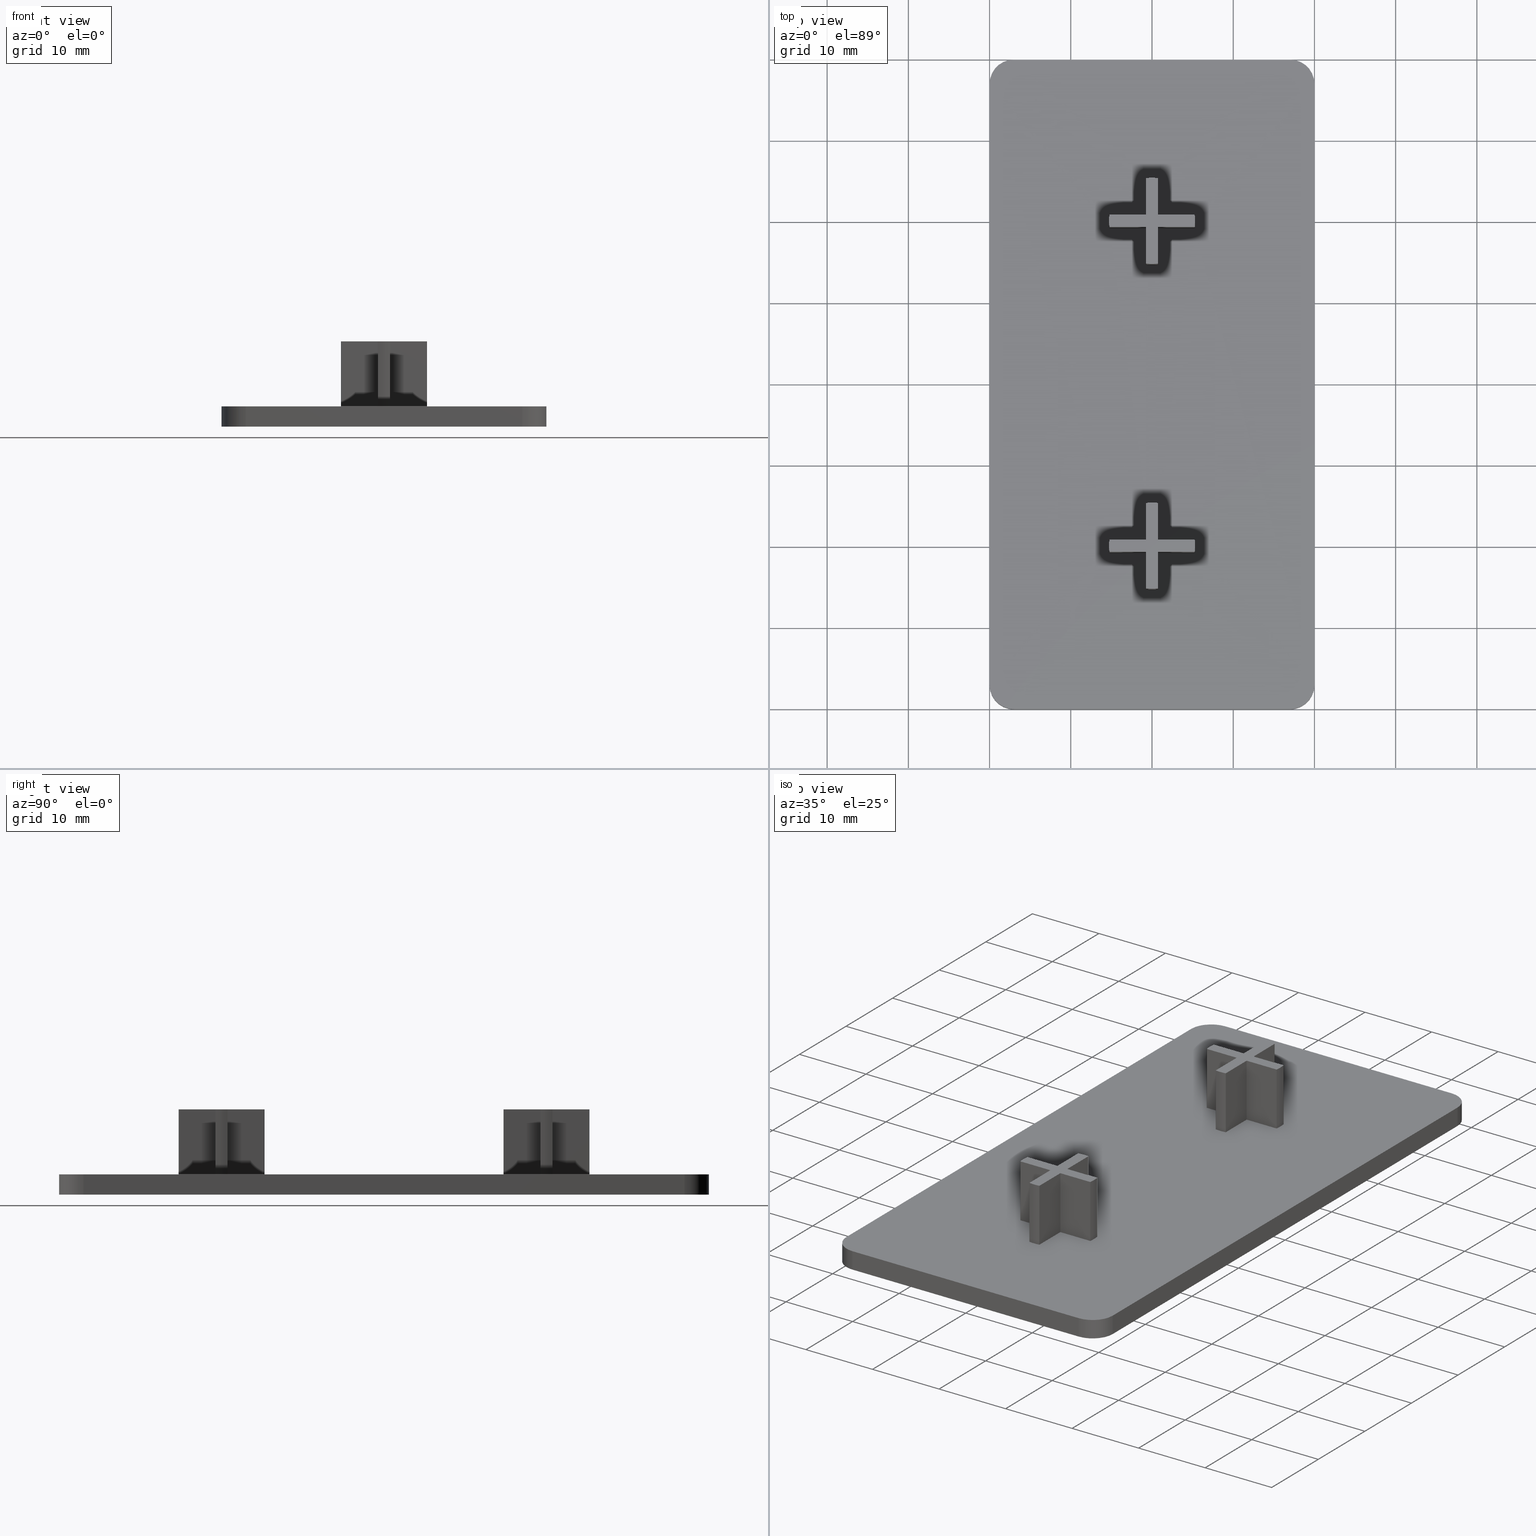
[diagram: canonical four-view strip — front | top / right | iso, engineering-drawing reading convention]
A machine part, canonical four-view strip (front | top / right | iso — engineering-drawing reading convention). The complete STEP part file that produces these views, byte-faithful:
ISO-10303-21;
HEADER;
/* Generated by software containing ST-Developer
 * from STEP Tools, Inc. (www.steptools.com) 
 */

FILE_DESCRIPTION(
/* description */ ('TAPPO 40x80 GRIGIO - CAVA 10'),
/* implementation_level */ '2;1');

FILE_NAME(
/* name */ 
'Q:\\Catalogo\\2_Accessori Dierre\\Per Download Web e catalogo cartace
o\\CATALOGO TAPPI DI CHIUSURA\\PAGINA 89\\DTPTR0000041.stp',
/* time_stamp */ '2018-11-08T10:32:13+01:00',
/* author */ ('fzagni'),
/* organization */ (''),
/* preprocessor_version */ 'ST-DEVELOPER v16.1',
/* originating_system */ 'Autodesk Inventor 2016',
/* authorisation */ '');

FILE_SCHEMA (('AUTOMOTIVE_DESIGN { 1 0 10303 214 3 1 1 }'));
ENDSEC;

DATA;
#10=MECHANICAL_DESIGN_GEOMETRIC_PRESENTATION_REPRESENTATION('',(#48),#1378);
#11=GEOMETRICALLY_BOUNDED_SURFACE_SHAPE_REPRESENTATION('',(#12),#1377);
#12=GEOMETRIC_SET('GEOSET',(#13,#14,#15,#16,#17,#18,#19,#20,#21,#22,#23,
#24,#25,#26,#27,#28,#29,#30,#31,#32,#33,#34,#35,#36,#37,#38,#39,#40,#41,
#42,#43,#44));
#13=TRIMMED_CURVE('',#246,(#1280),(#1281),.T.,.CARTESIAN.);
#14=TRIMMED_CURVE('',#247,(#1283),(#1284),.T.,.CARTESIAN.);
#15=TRIMMED_CURVE('',#76,(#1286,PARAMETER_VALUE(81.8647998968988)),(#1287,
PARAMETER_VALUE(98.1352001031012)),.T.,.PARAMETER.);
#16=TRIMMED_CURVE('',#248,(#1289),(#1290),.T.,.CARTESIAN.);
#17=TRIMMED_CURVE('',#249,(#1292),(#1293),.T.,.CARTESIAN.);
#18=TRIMMED_CURVE('',#77,(#1295,PARAMETER_VALUE(351.864799896899)),(#1296,
PARAMETER_VALUE(368.135200103101)),.T.,.PARAMETER.);
#19=TRIMMED_CURVE('',#250,(#1298),(#1299),.T.,.CARTESIAN.);
#20=TRIMMED_CURVE('',#251,(#1301),(#1302),.T.,.CARTESIAN.);
#21=TRIMMED_CURVE('',#78,(#1304,PARAMETER_VALUE(261.8647998969)),(#1305,
PARAMETER_VALUE(278.135200103101)),.T.,.PARAMETER.);
#22=TRIMMED_CURVE('',#252,(#1307),(#1308),.T.,.CARTESIAN.);
#23=TRIMMED_CURVE('',#253,(#1310),(#1311),.T.,.CARTESIAN.);
#24=TRIMMED_CURVE('',#79,(#1313,PARAMETER_VALUE(171.864799896899)),(#1314,
PARAMETER_VALUE(188.135200103101)),.T.,.PARAMETER.);
#25=TRIMMED_CURVE('',#254,(#1316),(#1317),.T.,.CARTESIAN.);
#26=TRIMMED_CURVE('',#255,(#1319),(#1320),.T.,.CARTESIAN.);
#27=TRIMMED_CURVE('',#80,(#1322,PARAMETER_VALUE(261.8647998969)),(#1323,
PARAMETER_VALUE(278.135200103101)),.T.,.PARAMETER.);
#28=TRIMMED_CURVE('',#256,(#1325),(#1326),.T.,.CARTESIAN.);
#29=TRIMMED_CURVE('',#257,(#1328),(#1329),.T.,.CARTESIAN.);
#30=TRIMMED_CURVE('',#81,(#1331,PARAMETER_VALUE(171.864799896899)),(#1332,
PARAMETER_VALUE(188.135200103101)),.T.,.PARAMETER.);
#31=TRIMMED_CURVE('',#258,(#1334),(#1335),.T.,.CARTESIAN.);
#32=TRIMMED_CURVE('',#259,(#1337),(#1338),.T.,.CARTESIAN.);
#33=TRIMMED_CURVE('',#82,(#1340,PARAMETER_VALUE(81.8647998968988)),(#1341,
PARAMETER_VALUE(98.1352001031012)),.T.,.PARAMETER.);
#34=TRIMMED_CURVE('',#260,(#1343),(#1344),.T.,.CARTESIAN.);
#35=TRIMMED_CURVE('',#261,(#1346),(#1347),.T.,.CARTESIAN.);
#36=TRIMMED_CURVE('',#83,(#1349,PARAMETER_VALUE(351.864799896899)),(#1350,
PARAMETER_VALUE(368.135200103101)),.T.,.PARAMETER.);
#37=TRIMMED_CURVE('',#84,(#1352,PARAMETER_VALUE(90.)),(#1353,
PARAMETER_VALUE(180.000000000001)),.T.,.PARAMETER.);
#38=TRIMMED_CURVE('',#262,(#1355),(#1356),.T.,.CARTESIAN.);
#39=TRIMMED_CURVE('',#85,(#1358,PARAMETER_VALUE(0.)),(#1359,
PARAMETER_VALUE(90.)),.T.,.PARAMETER.);
#40=TRIMMED_CURVE('',#263,(#1361),(#1362),.T.,.CARTESIAN.);
#41=TRIMMED_CURVE('',#86,(#1364,PARAMETER_VALUE(270.)),(#1365,
PARAMETER_VALUE(360.)),.T.,.PARAMETER.);
#42=TRIMMED_CURVE('',#264,(#1367),(#1368),.T.,.CARTESIAN.);
#43=TRIMMED_CURVE('',#87,(#1370,PARAMETER_VALUE(180.)),(#1371,
PARAMETER_VALUE(270.)),.T.,.PARAMETER.);
#44=TRIMMED_CURVE('',#265,(#1373),(#1374),.T.,.CARTESIAN.);
#45=SHAPE_REPRESENTATION_RELATIONSHIP('SRR','None',#1387,#47);
#46=SHAPE_REPRESENTATION_RELATIONSHIP('SRR','None',#1387,#11);
#47=ADVANCED_BREP_SHAPE_REPRESENTATION('',(#49),#1377);
#48=STYLED_ITEM('',(#1396),#49);
#49=MANIFOLD_SOLID_BREP('Solido1',#770);
#50=FACE_BOUND('',#171,.T.);
#51=FACE_BOUND('',#172,.T.);
#52=CIRCLE('',#774,5.3);
#53=CIRCLE('',#775,5.3);
#54=CIRCLE('',#779,5.29999999999998);
#55=CIRCLE('',#780,5.29999999999998);
#56=CIRCLE('',#784,5.30000000000003);
#57=CIRCLE('',#785,5.30000000000003);
#58=CIRCLE('',#789,5.3);
#59=CIRCLE('',#790,5.3);
#60=CIRCLE('',#795,5.3);
#61=CIRCLE('',#796,5.3);
#62=CIRCLE('',#800,5.29999999999997);
#63=CIRCLE('',#801,5.29999999999997);
#64=CIRCLE('',#805,5.30000000000003);
#65=CIRCLE('',#806,5.30000000000003);
#66=CIRCLE('',#810,5.30000000000001);
#67=CIRCLE('',#811,5.30000000000001);
#68=CIRCLE('',#816,3.);
#69=CIRCLE('',#817,3.);
#70=CIRCLE('',#820,3.);
#71=CIRCLE('',#821,3.);
#72=CIRCLE('',#824,3.);
#73=CIRCLE('',#825,3.);
#74=CIRCLE('',#828,3.);
#75=CIRCLE('',#829,3.);
#76=CIRCLE('',#832,5.29999999999998);
#77=CIRCLE('',#833,5.3);
#78=CIRCLE('',#834,5.30000000000003);
#79=CIRCLE('',#835,5.3);
#80=CIRCLE('',#836,5.29999999999998);
#81=CIRCLE('',#837,5.3);
#82=CIRCLE('',#838,5.30000000000003);
#83=CIRCLE('',#839,5.30000000000001);
#84=CIRCLE('',#840,3.);
#85=CIRCLE('',#841,3.);
#86=CIRCLE('',#842,3.);
#87=CIRCLE('',#843,3.);
#88=CYLINDRICAL_SURFACE('',#773,5.3);
#89=CYLINDRICAL_SURFACE('',#778,5.29999999999998);
#90=CYLINDRICAL_SURFACE('',#783,5.30000000000003);
#91=CYLINDRICAL_SURFACE('',#788,5.3);
#92=CYLINDRICAL_SURFACE('',#794,5.3);
#93=CYLINDRICAL_SURFACE('',#799,5.29999999999997);
#94=CYLINDRICAL_SURFACE('',#804,5.30000000000003);
#95=CYLINDRICAL_SURFACE('',#809,5.30000000000001);
#96=CYLINDRICAL_SURFACE('',#815,3.);
#97=CYLINDRICAL_SURFACE('',#819,3.);
#98=CYLINDRICAL_SURFACE('',#823,3.);
#99=CYLINDRICAL_SURFACE('',#827,3.);
#100=FACE_OUTER_BOUND('',#136,.T.);
#101=FACE_OUTER_BOUND('',#137,.T.);
#102=FACE_OUTER_BOUND('',#138,.T.);
#103=FACE_OUTER_BOUND('',#139,.T.);
#104=FACE_OUTER_BOUND('',#140,.T.);
#105=FACE_OUTER_BOUND('',#141,.T.);
#106=FACE_OUTER_BOUND('',#142,.T.);
#107=FACE_OUTER_BOUND('',#143,.T.);
#108=FACE_OUTER_BOUND('',#144,.T.);
#109=FACE_OUTER_BOUND('',#145,.T.);
#110=FACE_OUTER_BOUND('',#146,.T.);
#111=FACE_OUTER_BOUND('',#147,.T.);
#112=FACE_OUTER_BOUND('',#148,.T.);
#113=FACE_OUTER_BOUND('',#149,.T.);
#114=FACE_OUTER_BOUND('',#150,.T.);
#115=FACE_OUTER_BOUND('',#151,.T.);
#116=FACE_OUTER_BOUND('',#152,.T.);
#117=FACE_OUTER_BOUND('',#153,.T.);
#118=FACE_OUTER_BOUND('',#154,.T.);
#119=FACE_OUTER_BOUND('',#155,.T.);
#120=FACE_OUTER_BOUND('',#156,.T.);
#121=FACE_OUTER_BOUND('',#157,.T.);
#122=FACE_OUTER_BOUND('',#158,.T.);
#123=FACE_OUTER_BOUND('',#159,.T.);
#124=FACE_OUTER_BOUND('',#160,.T.);
#125=FACE_OUTER_BOUND('',#161,.T.);
#126=FACE_OUTER_BOUND('',#162,.T.);
#127=FACE_OUTER_BOUND('',#163,.T.);
#128=FACE_OUTER_BOUND('',#164,.T.);
#129=FACE_OUTER_BOUND('',#165,.T.);
#130=FACE_OUTER_BOUND('',#166,.T.);
#131=FACE_OUTER_BOUND('',#167,.T.);
#132=FACE_OUTER_BOUND('',#168,.T.);
#133=FACE_OUTER_BOUND('',#169,.T.);
#134=FACE_OUTER_BOUND('',#170,.T.);
#135=FACE_OUTER_BOUND('',#173,.T.);
#136=EDGE_LOOP('',(#518,#519,#520,#521));
#137=EDGE_LOOP('',(#522,#523,#524,#525));
#138=EDGE_LOOP('',(#526,#527,#528,#529));
#139=EDGE_LOOP('',(#530,#531,#532,#533));
#140=EDGE_LOOP('',(#534,#535,#536,#537));
#141=EDGE_LOOP('',(#538,#539,#540,#541));
#142=EDGE_LOOP('',(#542,#543,#544,#545));
#143=EDGE_LOOP('',(#546,#547,#548,#549));
#144=EDGE_LOOP('',(#550,#551,#552,#553));
#145=EDGE_LOOP('',(#554,#555,#556,#557));
#146=EDGE_LOOP('',(#558,#559,#560,#561));
#147=EDGE_LOOP('',(#562,#563,#564,#565));
#148=EDGE_LOOP('',(#566,#567,#568,#569,#570,#571,#572,#573,#574,#575,#576,
#577));
#149=EDGE_LOOP('',(#578,#579,#580,#581));
#150=EDGE_LOOP('',(#582,#583,#584,#585));
#151=EDGE_LOOP('',(#586,#587,#588,#589));
#152=EDGE_LOOP('',(#590,#591,#592,#593));
#153=EDGE_LOOP('',(#594,#595,#596,#597));
#154=EDGE_LOOP('',(#598,#599,#600,#601));
#155=EDGE_LOOP('',(#602,#603,#604,#605));
#156=EDGE_LOOP('',(#606,#607,#608,#609));
#157=EDGE_LOOP('',(#610,#611,#612,#613));
#158=EDGE_LOOP('',(#614,#615,#616,#617));
#159=EDGE_LOOP('',(#618,#619,#620,#621));
#160=EDGE_LOOP('',(#622,#623,#624,#625));
#161=EDGE_LOOP('',(#626,#627,#628,#629,#630,#631,#632,#633,#634,#635,#636,
#637));
#162=EDGE_LOOP('',(#638,#639,#640,#641));
#163=EDGE_LOOP('',(#642,#643,#644,#645));
#164=EDGE_LOOP('',(#646,#647,#648,#649));
#165=EDGE_LOOP('',(#650,#651,#652,#653));
#166=EDGE_LOOP('',(#654,#655,#656,#657));
#167=EDGE_LOOP('',(#658,#659,#660,#661));
#168=EDGE_LOOP('',(#662,#663,#664,#665));
#169=EDGE_LOOP('',(#666,#667,#668,#669));
#170=EDGE_LOOP('',(#670,#671,#672,#673,#674,#675,#676,#677));
#171=EDGE_LOOP('',(#678,#679,#680,#681,#682,#683,#684,#685,#686,#687,#688,
#689));
#172=EDGE_LOOP('',(#690,#691,#692,#693,#694,#695,#696,#697,#698,#699,#700,
#701));
#173=EDGE_LOOP('',(#702,#703,#704,#705,#706,#707,#708,#709));
#174=LINE('',#1086,#266);
#175=LINE('',#1088,#267);
#176=LINE('',#1090,#268);
#177=LINE('',#1091,#269);
#178=LINE('',#1096,#270);
#179=LINE('',#1100,#271);
#180=LINE('',#1102,#272);
#181=LINE('',#1103,#273);
#182=LINE('',#1106,#274);
#183=LINE('',#1108,#275);
#184=LINE('',#1109,#276);
#185=LINE('',#1114,#277);
#186=LINE('',#1118,#278);
#187=LINE('',#1120,#279);
#188=LINE('',#1121,#280);
#189=LINE('',#1124,#281);
#190=LINE('',#1126,#282);
#191=LINE('',#1127,#283);
#192=LINE('',#1133,#284);
#193=LINE('',#1136,#285);
#194=LINE('',#1138,#286);
#195=LINE('',#1139,#287);
#196=LINE('',#1142,#288);
#197=LINE('',#1144,#289);
#198=LINE('',#1145,#290);
#199=LINE('',#1151,#291);
#200=LINE('',#1153,#292);
#201=LINE('',#1154,#293);
#202=LINE('',#1159,#294);
#203=LINE('',#1161,#295);
#204=LINE('',#1163,#296);
#205=LINE('',#1164,#297);
#206=LINE('',#1169,#298);
#207=LINE('',#1173,#299);
#208=LINE('',#1175,#300);
#209=LINE('',#1176,#301);
#210=LINE('',#1179,#302);
#211=LINE('',#1181,#303);
#212=LINE('',#1182,#304);
#213=LINE('',#1187,#305);
#214=LINE('',#1191,#306);
#215=LINE('',#1193,#307);
#216=LINE('',#1194,#308);
#217=LINE('',#1197,#309);
#218=LINE('',#1199,#310);
#219=LINE('',#1200,#311);
#220=LINE('',#1206,#312);
#221=LINE('',#1209,#313);
#222=LINE('',#1211,#314);
#223=LINE('',#1212,#315);
#224=LINE('',#1215,#316);
#225=LINE('',#1217,#317);
#226=LINE('',#1218,#318);
#227=LINE('',#1224,#319);
#228=LINE('',#1226,#320);
#229=LINE('',#1227,#321);
#230=LINE('',#1232,#322);
#231=LINE('',#1234,#323);
#232=LINE('',#1236,#324);
#233=LINE('',#1237,#325);
#234=LINE('',#1243,#326);
#235=LINE('',#1246,#327);
#236=LINE('',#1248,#328);
#237=LINE('',#1249,#329);
#238=LINE('',#1255,#330);
#239=LINE('',#1258,#331);
#240=LINE('',#1260,#332);
#241=LINE('',#1261,#333);
#242=LINE('',#1267,#334);
#243=LINE('',#1270,#335);
#244=LINE('',#1272,#336);
#245=LINE('',#1273,#337);
#246=LINE('',#1279,#338);
#247=LINE('',#1282,#339);
#248=LINE('',#1288,#340);
#249=LINE('',#1291,#341);
#250=LINE('',#1297,#342);
#251=LINE('',#1300,#343);
#252=LINE('',#1306,#344);
#253=LINE('',#1309,#345);
#254=LINE('',#1315,#346);
#255=LINE('',#1318,#347);
#256=LINE('',#1324,#348);
#257=LINE('',#1327,#349);
#258=LINE('',#1333,#350);
#259=LINE('',#1336,#351);
#260=LINE('',#1342,#352);
#261=LINE('',#1345,#353);
#262=LINE('',#1354,#354);
#263=LINE('',#1360,#355);
#264=LINE('',#1366,#356);
#265=LINE('',#1372,#357);
#266=VECTOR('',#848,4.49666560779321);
#267=VECTOR('',#849,8.);
#268=VECTOR('',#850,4.49666560779321);
#269=VECTOR('',#851,8.);
#270=VECTOR('',#856,8.);
#271=VECTOR('',#861,4.49666560779321);
#272=VECTOR('',#862,8.);
#273=VECTOR('',#863,4.49666560779321);
#274=VECTOR('',#866,4.49666560779318);
#275=VECTOR('',#867,8.);
#276=VECTOR('',#868,4.49666560779318);
#277=VECTOR('',#873,8.);
#278=VECTOR('',#878,4.49666560779318);
#279=VECTOR('',#879,8.);
#280=VECTOR('',#880,4.49666560779318);
#281=VECTOR('',#883,4.49666560779323);
#282=VECTOR('',#884,4.49666560779323);
#283=VECTOR('',#885,8.);
#284=VECTOR('',#892,8.);
#285=VECTOR('',#895,4.49666560779324);
#286=VECTOR('',#896,4.49666560779324);
#287=VECTOR('',#897,8.);
#288=VECTOR('',#900,4.4966656077932);
#289=VECTOR('',#901,4.4966656077932);
#290=VECTOR('',#902,8.);
#291=VECTOR('',#909,8.);
#292=VECTOR('',#912,4.4966656077932);
#293=VECTOR('',#913,4.4966656077932);
#294=VECTOR('',#918,4.49666560779321);
#295=VECTOR('',#919,8.);
#296=VECTOR('',#920,4.49666560779321);
#297=VECTOR('',#921,8.);
#298=VECTOR('',#926,8.);
#299=VECTOR('',#931,4.4966656077932);
#300=VECTOR('',#932,8.);
#301=VECTOR('',#933,4.4966656077932);
#302=VECTOR('',#936,4.4966656077932);
#303=VECTOR('',#937,8.);
#304=VECTOR('',#938,4.4966656077932);
#305=VECTOR('',#943,8.);
#306=VECTOR('',#948,4.49666560779319);
#307=VECTOR('',#949,8.);
#308=VECTOR('',#950,4.49666560779319);
#309=VECTOR('',#953,4.4966656077932);
#310=VECTOR('',#954,4.4966656077932);
#311=VECTOR('',#955,8.);
#312=VECTOR('',#962,8.);
#313=VECTOR('',#965,4.4966656077932);
#314=VECTOR('',#966,4.4966656077932);
#315=VECTOR('',#967,8.);
#316=VECTOR('',#970,4.49666560779321);
#317=VECTOR('',#971,4.49666560779321);
#318=VECTOR('',#972,8.);
#319=VECTOR('',#979,8.);
#320=VECTOR('',#982,4.49666560779321);
#321=VECTOR('',#983,4.49666560779321);
#322=VECTOR('',#988,34.);
#323=VECTOR('',#989,2.5);
#324=VECTOR('',#990,34.);
#325=VECTOR('',#991,2.5);
#326=VECTOR('',#998,2.5);
#327=VECTOR('',#1001,74.);
#328=VECTOR('',#1002,74.);
#329=VECTOR('',#1003,2.5);
#330=VECTOR('',#1010,2.5);
#331=VECTOR('',#1013,34.);
#332=VECTOR('',#1014,34.);
#333=VECTOR('',#1015,2.5);
#334=VECTOR('',#1022,2.5);
#335=VECTOR('',#1025,74.);
#336=VECTOR('',#1026,74.);
#337=VECTOR('',#1027,2.5);
#338=VECTOR('',#1038,4.4966656077932);
#339=VECTOR('',#1039,4.49666560779318);
#340=VECTOR('',#1042,4.49666560779318);
#341=VECTOR('',#1043,4.49666560779321);
#342=VECTOR('',#1046,4.49666560779321);
#343=VECTOR('',#1047,4.49666560779323);
#344=VECTOR('',#1050,4.49666560779324);
#345=VECTOR('',#1051,4.4966656077932);
#346=VECTOR('',#1054,4.49666560779321);
#347=VECTOR('',#1055,4.49666560779319);
#348=VECTOR('',#1058,4.4966656077932);
#349=VECTOR('',#1059,4.4966656077932);
#350=VECTOR('',#1062,4.49666560779321);
#351=VECTOR('',#1063,4.4966656077932);
#352=VECTOR('',#1066,4.4966656077932);
#353=VECTOR('',#1067,4.49666560779321);
#354=VECTOR('',#1072,34.);
#355=VECTOR('',#1075,74.);
#356=VECTOR('',#1078,34.);
#357=VECTOR('',#1081,74.);
#358=VERTEX_POINT('',#1084);
#359=VERTEX_POINT('',#1085);
#360=VERTEX_POINT('',#1087);
#361=VERTEX_POINT('',#1089);
#362=VERTEX_POINT('',#1093);
#363=VERTEX_POINT('',#1095);
#364=VERTEX_POINT('',#1099);
#365=VERTEX_POINT('',#1101);
#366=VERTEX_POINT('',#1105);
#367=VERTEX_POINT('',#1107);
#368=VERTEX_POINT('',#1111);
#369=VERTEX_POINT('',#1113);
#370=VERTEX_POINT('',#1117);
#371=VERTEX_POINT('',#1119);
#372=VERTEX_POINT('',#1123);
#373=VERTEX_POINT('',#1125);
#374=VERTEX_POINT('',#1129);
#375=VERTEX_POINT('',#1131);
#376=VERTEX_POINT('',#1135);
#377=VERTEX_POINT('',#1137);
#378=VERTEX_POINT('',#1141);
#379=VERTEX_POINT('',#1143);
#380=VERTEX_POINT('',#1147);
#381=VERTEX_POINT('',#1149);
#382=VERTEX_POINT('',#1157);
#383=VERTEX_POINT('',#1158);
#384=VERTEX_POINT('',#1160);
#385=VERTEX_POINT('',#1162);
#386=VERTEX_POINT('',#1166);
#387=VERTEX_POINT('',#1168);
#388=VERTEX_POINT('',#1172);
#389=VERTEX_POINT('',#1174);
#390=VERTEX_POINT('',#1178);
#391=VERTEX_POINT('',#1180);
#392=VERTEX_POINT('',#1184);
#393=VERTEX_POINT('',#1186);
#394=VERTEX_POINT('',#1190);
#395=VERTEX_POINT('',#1192);
#396=VERTEX_POINT('',#1196);
#397=VERTEX_POINT('',#1198);
#398=VERTEX_POINT('',#1202);
#399=VERTEX_POINT('',#1204);
#400=VERTEX_POINT('',#1208);
#401=VERTEX_POINT('',#1210);
#402=VERTEX_POINT('',#1214);
#403=VERTEX_POINT('',#1216);
#404=VERTEX_POINT('',#1220);
#405=VERTEX_POINT('',#1222);
#406=VERTEX_POINT('',#1230);
#407=VERTEX_POINT('',#1231);
#408=VERTEX_POINT('',#1233);
#409=VERTEX_POINT('',#1235);
#410=VERTEX_POINT('',#1239);
#411=VERTEX_POINT('',#1241);
#412=VERTEX_POINT('',#1245);
#413=VERTEX_POINT('',#1247);
#414=VERTEX_POINT('',#1251);
#415=VERTEX_POINT('',#1253);
#416=VERTEX_POINT('',#1257);
#417=VERTEX_POINT('',#1259);
#418=VERTEX_POINT('',#1263);
#419=VERTEX_POINT('',#1265);
#420=VERTEX_POINT('',#1269);
#421=VERTEX_POINT('',#1271);
#422=EDGE_CURVE('',#358,#359,#174,.T.);
#423=EDGE_CURVE('',#358,#360,#175,.T.);
#424=EDGE_CURVE('',#361,#360,#176,.T.);
#425=EDGE_CURVE('',#359,#361,#177,.T.);
#426=EDGE_CURVE('',#362,#358,#52,.T.);
#427=EDGE_CURVE('',#362,#363,#178,.T.);
#428=EDGE_CURVE('',#360,#363,#53,.T.);
#429=EDGE_CURVE('',#364,#362,#179,.T.);
#430=EDGE_CURVE('',#364,#365,#180,.T.);
#431=EDGE_CURVE('',#363,#365,#181,.T.);
#432=EDGE_CURVE('',#366,#364,#182,.T.);
#433=EDGE_CURVE('',#366,#367,#183,.T.);
#434=EDGE_CURVE('',#365,#367,#184,.T.);
#435=EDGE_CURVE('',#368,#366,#54,.T.);
#436=EDGE_CURVE('',#368,#369,#185,.T.);
#437=EDGE_CURVE('',#367,#369,#55,.T.);
#438=EDGE_CURVE('',#370,#368,#186,.T.);
#439=EDGE_CURVE('',#370,#371,#187,.T.);
#440=EDGE_CURVE('',#369,#371,#188,.T.);
#441=EDGE_CURVE('',#359,#372,#189,.T.);
#442=EDGE_CURVE('',#373,#361,#190,.T.);
#443=EDGE_CURVE('',#372,#373,#191,.T.);
#444=EDGE_CURVE('',#372,#374,#56,.T.);
#445=EDGE_CURVE('',#375,#373,#57,.T.);
#446=EDGE_CURVE('',#374,#375,#192,.T.);
#447=EDGE_CURVE('',#374,#376,#193,.T.);
#448=EDGE_CURVE('',#377,#375,#194,.T.);
#449=EDGE_CURVE('',#376,#377,#195,.T.);
#450=EDGE_CURVE('',#376,#378,#196,.T.);
#451=EDGE_CURVE('',#379,#377,#197,.T.);
#452=EDGE_CURVE('',#378,#379,#198,.T.);
#453=EDGE_CURVE('',#378,#380,#58,.T.);
#454=EDGE_CURVE('',#381,#379,#59,.T.);
#455=EDGE_CURVE('',#380,#381,#199,.T.);
#456=EDGE_CURVE('',#380,#370,#200,.T.);
#457=EDGE_CURVE('',#371,#381,#201,.T.);
#458=EDGE_CURVE('',#382,#383,#202,.T.);
#459=EDGE_CURVE('',#382,#384,#203,.T.);
#460=EDGE_CURVE('',#385,#384,#204,.T.);
#461=EDGE_CURVE('',#383,#385,#205,.T.);
#462=EDGE_CURVE('',#386,#382,#60,.T.);
#463=EDGE_CURVE('',#386,#387,#206,.T.);
#464=EDGE_CURVE('',#384,#387,#61,.T.);
#465=EDGE_CURVE('',#388,#386,#207,.T.);
#466=EDGE_CURVE('',#388,#389,#208,.T.);
#467=EDGE_CURVE('',#387,#389,#209,.T.);
#468=EDGE_CURVE('',#390,#388,#210,.T.);
#469=EDGE_CURVE('',#390,#391,#211,.T.);
#470=EDGE_CURVE('',#389,#391,#212,.T.);
#471=EDGE_CURVE('',#392,#390,#62,.T.);
#472=EDGE_CURVE('',#392,#393,#213,.T.);
#473=EDGE_CURVE('',#391,#393,#63,.T.);
#474=EDGE_CURVE('',#394,#392,#214,.T.);
#475=EDGE_CURVE('',#394,#395,#215,.T.);
#476=EDGE_CURVE('',#393,#395,#216,.T.);
#477=EDGE_CURVE('',#383,#396,#217,.T.);
#478=EDGE_CURVE('',#397,#385,#218,.T.);
#479=EDGE_CURVE('',#396,#397,#219,.T.);
#480=EDGE_CURVE('',#396,#398,#64,.T.);
#481=EDGE_CURVE('',#399,#397,#65,.T.);
#482=EDGE_CURVE('',#398,#399,#220,.T.);
#483=EDGE_CURVE('',#398,#400,#221,.T.);
#484=EDGE_CURVE('',#401,#399,#222,.T.);
#485=EDGE_CURVE('',#400,#401,#223,.T.);
#486=EDGE_CURVE('',#400,#402,#224,.T.);
#487=EDGE_CURVE('',#403,#401,#225,.T.);
#488=EDGE_CURVE('',#402,#403,#226,.T.);
#489=EDGE_CURVE('',#402,#404,#66,.T.);
#490=EDGE_CURVE('',#405,#403,#67,.T.);
#491=EDGE_CURVE('',#404,#405,#227,.T.);
#492=EDGE_CURVE('',#404,#394,#228,.T.);
#493=EDGE_CURVE('',#395,#405,#229,.T.);
#494=EDGE_CURVE('',#406,#407,#230,.T.);
#495=EDGE_CURVE('',#407,#408,#231,.T.);
#496=EDGE_CURVE('',#409,#408,#232,.T.);
#497=EDGE_CURVE('',#406,#409,#233,.T.);
#498=EDGE_CURVE('',#410,#406,#68,.T.);
#499=EDGE_CURVE('',#411,#409,#69,.T.);
#500=EDGE_CURVE('',#410,#411,#234,.T.);
#501=EDGE_CURVE('',#412,#410,#235,.T.);
#502=EDGE_CURVE('',#413,#411,#236,.T.);
#503=EDGE_CURVE('',#412,#413,#237,.T.);
#504=EDGE_CURVE('',#414,#412,#70,.T.);
#505=EDGE_CURVE('',#415,#413,#71,.T.);
#506=EDGE_CURVE('',#414,#415,#238,.T.);
#507=EDGE_CURVE('',#416,#414,#239,.T.);
#508=EDGE_CURVE('',#417,#415,#240,.T.);
#509=EDGE_CURVE('',#416,#417,#241,.T.);
#510=EDGE_CURVE('',#418,#416,#72,.T.);
#511=EDGE_CURVE('',#419,#417,#73,.T.);
#512=EDGE_CURVE('',#418,#419,#242,.T.);
#513=EDGE_CURVE('',#420,#418,#243,.T.);
#514=EDGE_CURVE('',#421,#419,#244,.T.);
#515=EDGE_CURVE('',#420,#421,#245,.T.);
#516=EDGE_CURVE('',#407,#420,#74,.T.);
#517=EDGE_CURVE('',#408,#421,#75,.T.);
#518=ORIENTED_EDGE('',*,*,#422,.F.);
#519=ORIENTED_EDGE('',*,*,#423,.T.);
#520=ORIENTED_EDGE('',*,*,#424,.F.);
#521=ORIENTED_EDGE('',*,*,#425,.F.);
#522=ORIENTED_EDGE('',*,*,#426,.F.);
#523=ORIENTED_EDGE('',*,*,#427,.T.);
#524=ORIENTED_EDGE('',*,*,#428,.F.);
#525=ORIENTED_EDGE('',*,*,#423,.F.);
#526=ORIENTED_EDGE('',*,*,#429,.F.);
#527=ORIENTED_EDGE('',*,*,#430,.T.);
#528=ORIENTED_EDGE('',*,*,#431,.F.);
#529=ORIENTED_EDGE('',*,*,#427,.F.);
#530=ORIENTED_EDGE('',*,*,#432,.F.);
#531=ORIENTED_EDGE('',*,*,#433,.T.);
#532=ORIENTED_EDGE('',*,*,#434,.F.);
#533=ORIENTED_EDGE('',*,*,#430,.F.);
#534=ORIENTED_EDGE('',*,*,#435,.F.);
#535=ORIENTED_EDGE('',*,*,#436,.T.);
#536=ORIENTED_EDGE('',*,*,#437,.F.);
#537=ORIENTED_EDGE('',*,*,#433,.F.);
#538=ORIENTED_EDGE('',*,*,#438,.F.);
#539=ORIENTED_EDGE('',*,*,#439,.T.);
#540=ORIENTED_EDGE('',*,*,#440,.F.);
#541=ORIENTED_EDGE('',*,*,#436,.F.);
#542=ORIENTED_EDGE('',*,*,#441,.F.);
#543=ORIENTED_EDGE('',*,*,#425,.T.);
#544=ORIENTED_EDGE('',*,*,#442,.F.);
#545=ORIENTED_EDGE('',*,*,#443,.F.);
#546=ORIENTED_EDGE('',*,*,#444,.F.);
#547=ORIENTED_EDGE('',*,*,#443,.T.);
#548=ORIENTED_EDGE('',*,*,#445,.F.);
#549=ORIENTED_EDGE('',*,*,#446,.F.);
#550=ORIENTED_EDGE('',*,*,#447,.F.);
#551=ORIENTED_EDGE('',*,*,#446,.T.);
#552=ORIENTED_EDGE('',*,*,#448,.F.);
#553=ORIENTED_EDGE('',*,*,#449,.F.);
#554=ORIENTED_EDGE('',*,*,#450,.F.);
#555=ORIENTED_EDGE('',*,*,#449,.T.);
#556=ORIENTED_EDGE('',*,*,#451,.F.);
#557=ORIENTED_EDGE('',*,*,#452,.F.);
#558=ORIENTED_EDGE('',*,*,#453,.F.);
#559=ORIENTED_EDGE('',*,*,#452,.T.);
#560=ORIENTED_EDGE('',*,*,#454,.F.);
#561=ORIENTED_EDGE('',*,*,#455,.F.);
#562=ORIENTED_EDGE('',*,*,#456,.F.);
#563=ORIENTED_EDGE('',*,*,#455,.T.);
#564=ORIENTED_EDGE('',*,*,#457,.F.);
#565=ORIENTED_EDGE('',*,*,#439,.F.);
#566=ORIENTED_EDGE('',*,*,#457,.T.);
#567=ORIENTED_EDGE('',*,*,#454,.T.);
#568=ORIENTED_EDGE('',*,*,#451,.T.);
#569=ORIENTED_EDGE('',*,*,#448,.T.);
#570=ORIENTED_EDGE('',*,*,#445,.T.);
#571=ORIENTED_EDGE('',*,*,#442,.T.);
#572=ORIENTED_EDGE('',*,*,#424,.T.);
#573=ORIENTED_EDGE('',*,*,#428,.T.);
#574=ORIENTED_EDGE('',*,*,#431,.T.);
#575=ORIENTED_EDGE('',*,*,#434,.T.);
#576=ORIENTED_EDGE('',*,*,#437,.T.);
#577=ORIENTED_EDGE('',*,*,#440,.T.);
#578=ORIENTED_EDGE('',*,*,#458,.F.);
#579=ORIENTED_EDGE('',*,*,#459,.T.);
#580=ORIENTED_EDGE('',*,*,#460,.F.);
#581=ORIENTED_EDGE('',*,*,#461,.F.);
#582=ORIENTED_EDGE('',*,*,#462,.F.);
#583=ORIENTED_EDGE('',*,*,#463,.T.);
#584=ORIENTED_EDGE('',*,*,#464,.F.);
#585=ORIENTED_EDGE('',*,*,#459,.F.);
#586=ORIENTED_EDGE('',*,*,#465,.F.);
#587=ORIENTED_EDGE('',*,*,#466,.T.);
#588=ORIENTED_EDGE('',*,*,#467,.F.);
#589=ORIENTED_EDGE('',*,*,#463,.F.);
#590=ORIENTED_EDGE('',*,*,#468,.F.);
#591=ORIENTED_EDGE('',*,*,#469,.T.);
#592=ORIENTED_EDGE('',*,*,#470,.F.);
#593=ORIENTED_EDGE('',*,*,#466,.F.);
#594=ORIENTED_EDGE('',*,*,#471,.F.);
#595=ORIENTED_EDGE('',*,*,#472,.T.);
#596=ORIENTED_EDGE('',*,*,#473,.F.);
#597=ORIENTED_EDGE('',*,*,#469,.F.);
#598=ORIENTED_EDGE('',*,*,#474,.F.);
#599=ORIENTED_EDGE('',*,*,#475,.T.);
#600=ORIENTED_EDGE('',*,*,#476,.F.);
#601=ORIENTED_EDGE('',*,*,#472,.F.);
#602=ORIENTED_EDGE('',*,*,#477,.F.);
#603=ORIENTED_EDGE('',*,*,#461,.T.);
#604=ORIENTED_EDGE('',*,*,#478,.F.);
#605=ORIENTED_EDGE('',*,*,#479,.F.);
#606=ORIENTED_EDGE('',*,*,#480,.F.);
#607=ORIENTED_EDGE('',*,*,#479,.T.);
#608=ORIENTED_EDGE('',*,*,#481,.F.);
#609=ORIENTED_EDGE('',*,*,#482,.F.);
#610=ORIENTED_EDGE('',*,*,#483,.F.);
#611=ORIENTED_EDGE('',*,*,#482,.T.);
#612=ORIENTED_EDGE('',*,*,#484,.F.);
#613=ORIENTED_EDGE('',*,*,#485,.F.);
#614=ORIENTED_EDGE('',*,*,#486,.F.);
#615=ORIENTED_EDGE('',*,*,#485,.T.);
#616=ORIENTED_EDGE('',*,*,#487,.F.);
#617=ORIENTED_EDGE('',*,*,#488,.F.);
#618=ORIENTED_EDGE('',*,*,#489,.F.);
#619=ORIENTED_EDGE('',*,*,#488,.T.);
#620=ORIENTED_EDGE('',*,*,#490,.F.);
#621=ORIENTED_EDGE('',*,*,#491,.F.);
#622=ORIENTED_EDGE('',*,*,#492,.F.);
#623=ORIENTED_EDGE('',*,*,#491,.T.);
#624=ORIENTED_EDGE('',*,*,#493,.F.);
#625=ORIENTED_EDGE('',*,*,#475,.F.);
#626=ORIENTED_EDGE('',*,*,#493,.T.);
#627=ORIENTED_EDGE('',*,*,#490,.T.);
#628=ORIENTED_EDGE('',*,*,#487,.T.);
#629=ORIENTED_EDGE('',*,*,#484,.T.);
#630=ORIENTED_EDGE('',*,*,#481,.T.);
#631=ORIENTED_EDGE('',*,*,#478,.T.);
#632=ORIENTED_EDGE('',*,*,#460,.T.);
#633=ORIENTED_EDGE('',*,*,#464,.T.);
#634=ORIENTED_EDGE('',*,*,#467,.T.);
#635=ORIENTED_EDGE('',*,*,#470,.T.);
#636=ORIENTED_EDGE('',*,*,#473,.T.);
#637=ORIENTED_EDGE('',*,*,#476,.T.);
#638=ORIENTED_EDGE('',*,*,#494,.T.);
#639=ORIENTED_EDGE('',*,*,#495,.T.);
#640=ORIENTED_EDGE('',*,*,#496,.F.);
#641=ORIENTED_EDGE('',*,*,#497,.F.);
#642=ORIENTED_EDGE('',*,*,#498,.T.);
#643=ORIENTED_EDGE('',*,*,#497,.T.);
#644=ORIENTED_EDGE('',*,*,#499,.F.);
#645=ORIENTED_EDGE('',*,*,#500,.F.);
#646=ORIENTED_EDGE('',*,*,#501,.T.);
#647=ORIENTED_EDGE('',*,*,#500,.T.);
#648=ORIENTED_EDGE('',*,*,#502,.F.);
#649=ORIENTED_EDGE('',*,*,#503,.F.);
#650=ORIENTED_EDGE('',*,*,#504,.T.);
#651=ORIENTED_EDGE('',*,*,#503,.T.);
#652=ORIENTED_EDGE('',*,*,#505,.F.);
#653=ORIENTED_EDGE('',*,*,#506,.F.);
#654=ORIENTED_EDGE('',*,*,#507,.T.);
#655=ORIENTED_EDGE('',*,*,#506,.T.);
#656=ORIENTED_EDGE('',*,*,#508,.F.);
#657=ORIENTED_EDGE('',*,*,#509,.F.);
#658=ORIENTED_EDGE('',*,*,#510,.T.);
#659=ORIENTED_EDGE('',*,*,#509,.T.);
#660=ORIENTED_EDGE('',*,*,#511,.F.);
#661=ORIENTED_EDGE('',*,*,#512,.F.);
#662=ORIENTED_EDGE('',*,*,#513,.T.);
#663=ORIENTED_EDGE('',*,*,#512,.T.);
#664=ORIENTED_EDGE('',*,*,#514,.F.);
#665=ORIENTED_EDGE('',*,*,#515,.F.);
#666=ORIENTED_EDGE('',*,*,#516,.T.);
#667=ORIENTED_EDGE('',*,*,#515,.T.);
#668=ORIENTED_EDGE('',*,*,#517,.F.);
#669=ORIENTED_EDGE('',*,*,#495,.F.);
#670=ORIENTED_EDGE('',*,*,#517,.T.);
#671=ORIENTED_EDGE('',*,*,#514,.T.);
#672=ORIENTED_EDGE('',*,*,#511,.T.);
#673=ORIENTED_EDGE('',*,*,#508,.T.);
#674=ORIENTED_EDGE('',*,*,#505,.T.);
#675=ORIENTED_EDGE('',*,*,#502,.T.);
#676=ORIENTED_EDGE('',*,*,#499,.T.);
#677=ORIENTED_EDGE('',*,*,#496,.T.);
#678=ORIENTED_EDGE('',*,*,#438,.T.);
#679=ORIENTED_EDGE('',*,*,#435,.T.);
#680=ORIENTED_EDGE('',*,*,#432,.T.);
#681=ORIENTED_EDGE('',*,*,#429,.T.);
#682=ORIENTED_EDGE('',*,*,#426,.T.);
#683=ORIENTED_EDGE('',*,*,#422,.T.);
#684=ORIENTED_EDGE('',*,*,#441,.T.);
#685=ORIENTED_EDGE('',*,*,#444,.T.);
#686=ORIENTED_EDGE('',*,*,#447,.T.);
#687=ORIENTED_EDGE('',*,*,#450,.T.);
#688=ORIENTED_EDGE('',*,*,#453,.T.);
#689=ORIENTED_EDGE('',*,*,#456,.T.);
#690=ORIENTED_EDGE('',*,*,#474,.T.);
#691=ORIENTED_EDGE('',*,*,#471,.T.);
#692=ORIENTED_EDGE('',*,*,#468,.T.);
#693=ORIENTED_EDGE('',*,*,#465,.T.);
#694=ORIENTED_EDGE('',*,*,#462,.T.);
#695=ORIENTED_EDGE('',*,*,#458,.T.);
#696=ORIENTED_EDGE('',*,*,#477,.T.);
#697=ORIENTED_EDGE('',*,*,#480,.T.);
#698=ORIENTED_EDGE('',*,*,#483,.T.);
#699=ORIENTED_EDGE('',*,*,#486,.T.);
#700=ORIENTED_EDGE('',*,*,#489,.T.);
#701=ORIENTED_EDGE('',*,*,#492,.T.);
#702=ORIENTED_EDGE('',*,*,#516,.F.);
#703=ORIENTED_EDGE('',*,*,#494,.F.);
#704=ORIENTED_EDGE('',*,*,#498,.F.);
#705=ORIENTED_EDGE('',*,*,#501,.F.);
#706=ORIENTED_EDGE('',*,*,#504,.F.);
#707=ORIENTED_EDGE('',*,*,#507,.F.);
#708=ORIENTED_EDGE('',*,*,#510,.F.);
#709=ORIENTED_EDGE('',*,*,#513,.F.);
#710=PLANE('',#772);
#711=PLANE('',#776);
#712=PLANE('',#777);
#713=PLANE('',#781);
#714=PLANE('',#782);
#715=PLANE('',#786);
#716=PLANE('',#787);
#717=PLANE('',#791);
#718=PLANE('',#792);
#719=PLANE('',#793);
#720=PLANE('',#797);
#721=PLANE('',#798);
#722=PLANE('',#802);
#723=PLANE('',#803);
#724=PLANE('',#807);
#725=PLANE('',#808);
#726=PLANE('',#812);
#727=PLANE('',#813);
#728=PLANE('',#814);
#729=PLANE('',#818);
#730=PLANE('',#822);
#731=PLANE('',#826);
#732=PLANE('',#830);
#733=PLANE('',#831);
#734=ADVANCED_FACE('',(#100),#710,.T.);
#735=ADVANCED_FACE('',(#101),#88,.T.);
#736=ADVANCED_FACE('',(#102),#711,.T.);
#737=ADVANCED_FACE('',(#103),#712,.T.);
#738=ADVANCED_FACE('',(#104),#89,.T.);
#739=ADVANCED_FACE('',(#105),#713,.T.);
#740=ADVANCED_FACE('',(#106),#714,.T.);
#741=ADVANCED_FACE('',(#107),#90,.T.);
#742=ADVANCED_FACE('',(#108),#715,.T.);
#743=ADVANCED_FACE('',(#109),#716,.T.);
#744=ADVANCED_FACE('',(#110),#91,.T.);
#745=ADVANCED_FACE('',(#111),#717,.T.);
#746=ADVANCED_FACE('',(#112),#718,.T.);
#747=ADVANCED_FACE('',(#113),#719,.T.);
#748=ADVANCED_FACE('',(#114),#92,.T.);
#749=ADVANCED_FACE('',(#115),#720,.T.);
#750=ADVANCED_FACE('',(#116),#721,.T.);
#751=ADVANCED_FACE('',(#117),#93,.T.);
#752=ADVANCED_FACE('',(#118),#722,.T.);
#753=ADVANCED_FACE('',(#119),#723,.T.);
#754=ADVANCED_FACE('',(#120),#94,.T.);
#755=ADVANCED_FACE('',(#121),#724,.T.);
#756=ADVANCED_FACE('',(#122),#725,.T.);
#757=ADVANCED_FACE('',(#123),#95,.T.);
#758=ADVANCED_FACE('',(#124),#726,.T.);
#759=ADVANCED_FACE('',(#125),#727,.T.);
#760=ADVANCED_FACE('',(#126),#728,.T.);
#761=ADVANCED_FACE('',(#127),#96,.T.);
#762=ADVANCED_FACE('',(#128),#729,.T.);
#763=ADVANCED_FACE('',(#129),#97,.T.);
#764=ADVANCED_FACE('',(#130),#730,.T.);
#765=ADVANCED_FACE('',(#131),#98,.T.);
#766=ADVANCED_FACE('',(#132),#731,.T.);
#767=ADVANCED_FACE('',(#133),#99,.T.);
#768=ADVANCED_FACE('',(#134,#50,#51),#732,.T.);
#769=ADVANCED_FACE('',(#135),#733,.F.);
#770=CLOSED_SHELL('',(#734,#735,#736,#737,#738,#739,#740,#741,#742,#743,
#744,#745,#746,#747,#748,#749,#750,#751,#752,#753,#754,#755,#756,#757,#758,
#759,#760,#761,#762,#763,#764,#765,#766,#767,#768,#769));
#771=AXIS2_PLACEMENT_3D('placement',#1082,#844,#845);
#772=AXIS2_PLACEMENT_3D('',#1083,#846,#847);
#773=AXIS2_PLACEMENT_3D('',#1092,#852,#853);
#774=AXIS2_PLACEMENT_3D('',#1094,#854,#855);
#775=AXIS2_PLACEMENT_3D('',#1097,#857,#858);
#776=AXIS2_PLACEMENT_3D('',#1098,#859,#860);
#777=AXIS2_PLACEMENT_3D('',#1104,#864,#865);
#778=AXIS2_PLACEMENT_3D('',#1110,#869,#870);
#779=AXIS2_PLACEMENT_3D('',#1112,#871,#872);
#780=AXIS2_PLACEMENT_3D('',#1115,#874,#875);
#781=AXIS2_PLACEMENT_3D('',#1116,#876,#877);
#782=AXIS2_PLACEMENT_3D('',#1122,#881,#882);
#783=AXIS2_PLACEMENT_3D('',#1128,#886,#887);
#784=AXIS2_PLACEMENT_3D('',#1130,#888,#889);
#785=AXIS2_PLACEMENT_3D('',#1132,#890,#891);
#786=AXIS2_PLACEMENT_3D('',#1134,#893,#894);
#787=AXIS2_PLACEMENT_3D('',#1140,#898,#899);
#788=AXIS2_PLACEMENT_3D('',#1146,#903,#904);
#789=AXIS2_PLACEMENT_3D('',#1148,#905,#906);
#790=AXIS2_PLACEMENT_3D('',#1150,#907,#908);
#791=AXIS2_PLACEMENT_3D('',#1152,#910,#911);
#792=AXIS2_PLACEMENT_3D('',#1155,#914,#915);
#793=AXIS2_PLACEMENT_3D('',#1156,#916,#917);
#794=AXIS2_PLACEMENT_3D('',#1165,#922,#923);
#795=AXIS2_PLACEMENT_3D('',#1167,#924,#925);
#796=AXIS2_PLACEMENT_3D('',#1170,#927,#928);
#797=AXIS2_PLACEMENT_3D('',#1171,#929,#930);
#798=AXIS2_PLACEMENT_3D('',#1177,#934,#935);
#799=AXIS2_PLACEMENT_3D('',#1183,#939,#940);
#800=AXIS2_PLACEMENT_3D('',#1185,#941,#942);
#801=AXIS2_PLACEMENT_3D('',#1188,#944,#945);
#802=AXIS2_PLACEMENT_3D('',#1189,#946,#947);
#803=AXIS2_PLACEMENT_3D('',#1195,#951,#952);
#804=AXIS2_PLACEMENT_3D('',#1201,#956,#957);
#805=AXIS2_PLACEMENT_3D('',#1203,#958,#959);
#806=AXIS2_PLACEMENT_3D('',#1205,#960,#961);
#807=AXIS2_PLACEMENT_3D('',#1207,#963,#964);
#808=AXIS2_PLACEMENT_3D('',#1213,#968,#969);
#809=AXIS2_PLACEMENT_3D('',#1219,#973,#974);
#810=AXIS2_PLACEMENT_3D('',#1221,#975,#976);
#811=AXIS2_PLACEMENT_3D('',#1223,#977,#978);
#812=AXIS2_PLACEMENT_3D('',#1225,#980,#981);
#813=AXIS2_PLACEMENT_3D('',#1228,#984,#985);
#814=AXIS2_PLACEMENT_3D('',#1229,#986,#987);
#815=AXIS2_PLACEMENT_3D('',#1238,#992,#993);
#816=AXIS2_PLACEMENT_3D('',#1240,#994,#995);
#817=AXIS2_PLACEMENT_3D('',#1242,#996,#997);
#818=AXIS2_PLACEMENT_3D('',#1244,#999,#1000);
#819=AXIS2_PLACEMENT_3D('',#1250,#1004,#1005);
#820=AXIS2_PLACEMENT_3D('',#1252,#1006,#1007);
#821=AXIS2_PLACEMENT_3D('',#1254,#1008,#1009);
#822=AXIS2_PLACEMENT_3D('',#1256,#1011,#1012);
#823=AXIS2_PLACEMENT_3D('',#1262,#1016,#1017);
#824=AXIS2_PLACEMENT_3D('',#1264,#1018,#1019);
#825=AXIS2_PLACEMENT_3D('',#1266,#1020,#1021);
#826=AXIS2_PLACEMENT_3D('',#1268,#1023,#1024);
#827=AXIS2_PLACEMENT_3D('',#1274,#1028,#1029);
#828=AXIS2_PLACEMENT_3D('',#1275,#1030,#1031);
#829=AXIS2_PLACEMENT_3D('',#1276,#1032,#1033);
#830=AXIS2_PLACEMENT_3D('',#1277,#1034,#1035);
#831=AXIS2_PLACEMENT_3D('',#1278,#1036,#1037);
#832=AXIS2_PLACEMENT_3D('',#1285,#1040,#1041);
#833=AXIS2_PLACEMENT_3D('',#1294,#1044,#1045);
#834=AXIS2_PLACEMENT_3D('',#1303,#1048,#1049);
#835=AXIS2_PLACEMENT_3D('',#1312,#1052,#1053);
#836=AXIS2_PLACEMENT_3D('',#1321,#1056,#1057);
#837=AXIS2_PLACEMENT_3D('',#1330,#1060,#1061);
#838=AXIS2_PLACEMENT_3D('',#1339,#1064,#1065);
#839=AXIS2_PLACEMENT_3D('',#1348,#1068,#1069);
#840=AXIS2_PLACEMENT_3D('',#1351,#1070,#1071);
#841=AXIS2_PLACEMENT_3D('',#1357,#1073,#1074);
#842=AXIS2_PLACEMENT_3D('',#1363,#1076,#1077);
#843=AXIS2_PLACEMENT_3D('',#1369,#1079,#1080);
#844=DIRECTION('axis',(0.,0.,1.));
#845=DIRECTION('refdir',(1.,0.,0.));
#846=DIRECTION('center_axis',(9.87596696272918E-15,-1.,0.));
#847=DIRECTION('ref_axis',(1.,9.88098491916389E-15,0.));
#848=DIRECTION('',(-1.,-9.87596696272918E-15,0.));
#849=DIRECTION('',(0.,0.,1.));
#850=DIRECTION('',(1.,9.87596696272918E-15,0.));
#851=DIRECTION('',(0.,0.,1.));
#852=DIRECTION('center_axis',(0.,0.,1.));
#853=DIRECTION('ref_axis',(0.989936907130794,-0.141509433962256,0.));
#854=DIRECTION('center_axis',(0.,0.,-1.));
#855=DIRECTION('ref_axis',(0.989936907130794,-0.141509433962256,0.));
#856=DIRECTION('',(0.,0.,1.));
#857=DIRECTION('center_axis',(0.,0.,1.));
#858=DIRECTION('ref_axis',(0.989936907130794,-0.141509433962256,0.));
#859=DIRECTION('center_axis',(5.92558017763751E-15,1.,0.));
#860=DIRECTION('ref_axis',(-1.,5.92859095149834E-15,0.));
#861=DIRECTION('',(1.,-5.92558017763751E-15,0.));
#862=DIRECTION('',(0.,0.,1.));
#863=DIRECTION('',(-1.,5.92558017763751E-15,0.));
#864=DIRECTION('center_axis',(1.,9.87596696272925E-16,0.));
#865=DIRECTION('ref_axis',(-9.88098491916389E-16,1.,0.));
#866=DIRECTION('',(9.87596696272925E-16,-1.,0.));
#867=DIRECTION('',(0.,0.,1.));
#868=DIRECTION('',(-9.87596696272925E-16,1.,0.));
#869=DIRECTION('center_axis',(0.,0.,1.));
#870=DIRECTION('ref_axis',(0.141509433962264,0.989936907130793,0.));
#871=DIRECTION('center_axis',(0.,0.,-1.));
#872=DIRECTION('ref_axis',(0.141509433962264,0.989936907130793,0.));
#873=DIRECTION('',(0.,0.,1.));
#874=DIRECTION('center_axis',(0.,0.,1.));
#875=DIRECTION('ref_axis',(0.141509433962264,0.989936907130793,0.));
#876=DIRECTION('center_axis',(-1.,0.,0.));
#877=DIRECTION('ref_axis',(0.,-1.,0.));
#878=DIRECTION('',(0.,1.,0.));
#879=DIRECTION('',(0.,0.,1.));
#880=DIRECTION('',(0.,-1.,0.));
#881=DIRECTION('center_axis',(1.,0.,0.));
#882=DIRECTION('ref_axis',(0.,1.,0.));
#883=DIRECTION('',(0.,-1.,0.));
#884=DIRECTION('',(0.,1.,0.));
#885=DIRECTION('',(0.,0.,1.));
#886=DIRECTION('center_axis',(0.,0.,1.));
#887=DIRECTION('ref_axis',(-0.141509433962249,-0.989936907130795,0.));
#888=DIRECTION('center_axis',(0.,0.,-1.));
#889=DIRECTION('ref_axis',(-0.141509433962249,-0.989936907130795,0.));
#890=DIRECTION('center_axis',(0.,0.,1.));
#891=DIRECTION('ref_axis',(-0.141509433962249,-0.989936907130795,0.));
#892=DIRECTION('',(0.,0.,1.));
#893=DIRECTION('center_axis',(-1.,-1.58015471403666E-14,0.));
#894=DIRECTION('ref_axis',(1.5798473640416E-14,-1.,0.));
#895=DIRECTION('',(-1.58015471403666E-14,1.,0.));
#896=DIRECTION('',(1.58015471403666E-14,-1.,0.));
#897=DIRECTION('',(0.,0.,1.));
#898=DIRECTION('center_axis',(0.,-1.,0.));
#899=DIRECTION('ref_axis',(1.,0.,0.));
#900=DIRECTION('',(-1.,0.,0.));
#901=DIRECTION('',(1.,0.,0.));
#902=DIRECTION('',(0.,0.,1.));
#903=DIRECTION('center_axis',(0.,0.,1.));
#904=DIRECTION('ref_axis',(-0.989936907130793,0.141509433962264,0.));
#905=DIRECTION('center_axis',(0.,0.,-1.));
#906=DIRECTION('ref_axis',(-0.989936907130793,0.141509433962264,0.));
#907=DIRECTION('center_axis',(0.,0.,1.));
#908=DIRECTION('ref_axis',(-0.989936907130793,0.141509433962264,0.));
#909=DIRECTION('',(0.,0.,1.));
#910=DIRECTION('center_axis',(0.,1.,0.));
#911=DIRECTION('ref_axis',(-1.,0.,0.));
#912=DIRECTION('',(1.,0.,0.));
#913=DIRECTION('',(-1.,0.,0.));
#914=DIRECTION('center_axis',(0.,0.,1.));
#915=DIRECTION('ref_axis',(1.,0.,0.));
#916=DIRECTION('center_axis',(-1.58015471403667E-14,1.,0.));
#917=DIRECTION('ref_axis',(-1.,-1.56319401867222E-14,0.));
#918=DIRECTION('',(1.,1.58015471403667E-14,0.));
#919=DIRECTION('',(0.,0.,1.));
#920=DIRECTION('',(-1.,-1.58015471403667E-14,0.));
#921=DIRECTION('',(0.,0.,1.));
#922=DIRECTION('center_axis',(0.,0.,1.));
#923=DIRECTION('ref_axis',(-0.989936907130794,0.141509433962252,0.));
#924=DIRECTION('center_axis',(0.,0.,-1.));
#925=DIRECTION('ref_axis',(-0.989936907130794,0.141509433962252,0.));
#926=DIRECTION('',(0.,0.,1.));
#927=DIRECTION('center_axis',(0.,0.,1.));
#928=DIRECTION('ref_axis',(-0.989936907130794,0.141509433962252,0.));
#929=DIRECTION('center_axis',(0.,-1.,0.));
#930=DIRECTION('ref_axis',(1.,0.,0.));
#931=DIRECTION('',(-1.,0.,0.));
#932=DIRECTION('',(0.,0.,1.));
#933=DIRECTION('',(1.,0.,0.));
#934=DIRECTION('center_axis',(-1.,-1.77767405329125E-14,0.));
#935=DIRECTION('ref_axis',(1.77746706242488E-14,-1.,0.));
#936=DIRECTION('',(-1.77767405329125E-14,1.,0.));
#937=DIRECTION('',(0.,0.,1.));
#938=DIRECTION('',(1.77767405329125E-14,-1.,0.));
#939=DIRECTION('center_axis',(0.,0.,1.));
#940=DIRECTION('ref_axis',(-0.141509433962246,-0.989936907130795,0.));
#941=DIRECTION('center_axis',(0.,0.,-1.));
#942=DIRECTION('ref_axis',(-0.141509433962246,-0.989936907130795,0.));
#943=DIRECTION('',(0.,0.,1.));
#944=DIRECTION('center_axis',(0.,0.,1.));
#945=DIRECTION('ref_axis',(-0.141509433962246,-0.989936907130795,0.));
#946=DIRECTION('center_axis',(1.,0.,0.));
#947=DIRECTION('ref_axis',(0.,1.,0.));
#948=DIRECTION('',(0.,-1.,0.));
#949=DIRECTION('',(0.,0.,1.));
#950=DIRECTION('',(0.,1.,0.));
#951=DIRECTION('center_axis',(-1.,0.,0.));
#952=DIRECTION('ref_axis',(0.,-1.,0.));
#953=DIRECTION('',(0.,1.,0.));
#954=DIRECTION('',(0.,-1.,0.));
#955=DIRECTION('',(0.,0.,1.));
#956=DIRECTION('center_axis',(0.,0.,1.));
#957=DIRECTION('ref_axis',(0.141509433962264,0.989936907130793,0.));
#958=DIRECTION('center_axis',(0.,0.,-1.));
#959=DIRECTION('ref_axis',(0.141509433962264,0.989936907130793,0.));
#960=DIRECTION('center_axis',(0.,0.,1.));
#961=DIRECTION('ref_axis',(0.141509433962264,0.989936907130793,0.));
#962=DIRECTION('',(0.,0.,1.));
#963=DIRECTION('center_axis',(1.,-9.87596696272919E-16,0.));
#964=DIRECTION('ref_axis',(9.88098491916389E-16,1.,0.));
#965=DIRECTION('',(-9.87596696272919E-16,-1.,0.));
#966=DIRECTION('',(9.87596696272919E-16,1.,0.));
#967=DIRECTION('',(0.,0.,1.));
#968=DIRECTION('center_axis',(0.,1.,0.));
#969=DIRECTION('ref_axis',(-1.,0.,0.));
#970=DIRECTION('',(1.,0.,0.));
#971=DIRECTION('',(-1.,0.,0.));
#972=DIRECTION('',(0.,0.,1.));
#973=DIRECTION('center_axis',(0.,0.,1.));
#974=DIRECTION('ref_axis',(0.989936907130792,-0.141509433962267,0.));
#975=DIRECTION('center_axis',(0.,0.,-1.));
#976=DIRECTION('ref_axis',(0.989936907130792,-0.141509433962267,0.));
#977=DIRECTION('center_axis',(0.,0.,1.));
#978=DIRECTION('ref_axis',(0.989936907130792,-0.141509433962267,0.));
#979=DIRECTION('',(0.,0.,1.));
#980=DIRECTION('center_axis',(0.,-1.,0.));
#981=DIRECTION('ref_axis',(1.,0.,0.));
#982=DIRECTION('',(-1.,0.,0.));
#983=DIRECTION('',(1.,0.,0.));
#984=DIRECTION('center_axis',(0.,0.,1.));
#985=DIRECTION('ref_axis',(1.,0.,0.));
#986=DIRECTION('center_axis',(1.30614473485313E-15,1.,0.));
#987=DIRECTION('ref_axis',(-1.,1.4210854715202E-15,0.));
#988=DIRECTION('',(-1.,1.30614473485313E-15,0.));
#989=DIRECTION('',(0.,0.,1.));
#990=DIRECTION('',(-1.,1.30614473485313E-15,0.));
#991=DIRECTION('',(0.,0.,1.));
#992=DIRECTION('center_axis',(0.,0.,1.));
#993=DIRECTION('ref_axis',(1.,0.,0.));
#994=DIRECTION('center_axis',(0.,0.,1.));
#995=DIRECTION('ref_axis',(1.,0.,0.));
#996=DIRECTION('center_axis',(0.,0.,1.));
#997=DIRECTION('ref_axis',(1.,0.,0.));
#998=DIRECTION('',(0.,0.,1.));
#999=DIRECTION('center_axis',(1.,-2.40048221540574E-16,0.));
#1000=DIRECTION('ref_axis',(3.5527136788005E-16,1.,0.));
#1001=DIRECTION('',(2.40048221540574E-16,1.,0.));
#1002=DIRECTION('',(2.40048221540574E-16,1.,0.));
#1003=DIRECTION('',(0.,0.,1.));
#1004=DIRECTION('center_axis',(0.,0.,1.));
#1005=DIRECTION('ref_axis',(1.18423789293351E-14,-1.,0.));
#1006=DIRECTION('center_axis',(0.,0.,1.));
#1007=DIRECTION('ref_axis',(1.18423789293351E-14,-1.,0.));
#1008=DIRECTION('center_axis',(0.,0.,1.));
#1009=DIRECTION('ref_axis',(1.18423789293351E-14,-1.,0.));
#1010=DIRECTION('',(0.,0.,1.));
#1011=DIRECTION('center_axis',(5.22457893941249E-16,-1.,0.));
#1012=DIRECTION('ref_axis',(1.,3.5527136788005E-16,0.));
#1013=DIRECTION('',(1.,5.22457893941249E-16,0.));
#1014=DIRECTION('',(1.,5.22457893941249E-16,0.));
#1015=DIRECTION('',(0.,0.,1.));
#1016=DIRECTION('center_axis',(0.,0.,1.));
#1017=DIRECTION('ref_axis',(-1.,-1.48029736616688E-15,0.));
#1018=DIRECTION('center_axis',(0.,0.,1.));
#1019=DIRECTION('ref_axis',(-1.,-1.48029736616688E-15,0.));
#1020=DIRECTION('center_axis',(0.,0.,1.));
#1021=DIRECTION('ref_axis',(-1.,-1.48029736616688E-15,0.));
#1022=DIRECTION('',(0.,0.,1.));
#1023=DIRECTION('center_axis',(-1.,6.00120553851436E-17,0.));
#1024=DIRECTION('ref_axis',(0.,-1.,0.));
#1025=DIRECTION('',(-6.00120553851436E-17,-1.,0.));
#1026=DIRECTION('',(-6.00120553851436E-17,-1.,0.));
#1027=DIRECTION('',(0.,0.,1.));
#1028=DIRECTION('center_axis',(0.,0.,1.));
#1029=DIRECTION('ref_axis',(0.,1.,0.));
#1030=DIRECTION('center_axis',(0.,0.,1.));
#1031=DIRECTION('ref_axis',(0.,1.,0.));
#1032=DIRECTION('center_axis',(0.,0.,1.));
#1033=DIRECTION('ref_axis',(0.,1.,0.));
#1034=DIRECTION('center_axis',(0.,0.,1.));
#1035=DIRECTION('ref_axis',(1.,0.,0.));
#1036=DIRECTION('center_axis',(0.,0.,1.));
#1037=DIRECTION('ref_axis',(1.,0.,0.));
#1038=DIRECTION('',(-1.,0.,0.));
#1039=DIRECTION('',(0.,-1.,0.));
#1040=DIRECTION('center_axis',(0.,0.,1.));
#1041=DIRECTION('ref_axis',(1.,0.,0.));
#1042=DIRECTION('',(-9.87596696272925E-16,1.,0.));
#1043=DIRECTION('',(-1.,5.92558017763751E-15,0.));
#1044=DIRECTION('center_axis',(0.,0.,1.));
#1045=DIRECTION('ref_axis',(1.,0.,0.));
#1046=DIRECTION('',(1.,9.87596696272917E-15,0.));
#1047=DIRECTION('',(0.,1.,0.));
#1048=DIRECTION('center_axis',(0.,0.,1.));
#1049=DIRECTION('ref_axis',(1.,0.,0.));
#1050=DIRECTION('',(1.58015471403666E-14,-1.,0.));
#1051=DIRECTION('',(1.,0.,0.));
#1052=DIRECTION('center_axis',(0.,0.,1.));
#1053=DIRECTION('ref_axis',(1.,0.,0.));
#1054=DIRECTION('',(1.,0.,0.));
#1055=DIRECTION('',(0.,1.,0.));
#1056=DIRECTION('center_axis',(0.,0.,1.));
#1057=DIRECTION('ref_axis',(1.,0.,0.));
#1058=DIRECTION('',(1.77767405329125E-14,-1.,0.));
#1059=DIRECTION('',(1.,0.,0.));
#1060=DIRECTION('center_axis',(0.,0.,1.));
#1061=DIRECTION('ref_axis',(1.,0.,0.));
#1062=DIRECTION('',(-1.,-1.58015471403667E-14,0.));
#1063=DIRECTION('',(0.,-1.,0.));
#1064=DIRECTION('center_axis',(0.,0.,1.));
#1065=DIRECTION('ref_axis',(1.,0.,0.));
#1066=DIRECTION('',(9.87596696272919E-16,1.,0.));
#1067=DIRECTION('',(-1.,0.,0.));
#1068=DIRECTION('center_axis',(0.,0.,1.));
#1069=DIRECTION('ref_axis',(1.,0.,0.));
#1070=DIRECTION('center_axis',(0.,0.,1.));
#1071=DIRECTION('ref_axis',(1.,0.,0.));
#1072=DIRECTION('',(1.,-1.30614473485313E-15,0.));
#1073=DIRECTION('center_axis',(0.,0.,1.));
#1074=DIRECTION('ref_axis',(1.,0.,0.));
#1075=DIRECTION('',(-2.40048221540574E-16,-1.,0.));
#1076=DIRECTION('center_axis',(0.,0.,1.));
#1077=DIRECTION('ref_axis',(1.,0.,0.));
#1078=DIRECTION('',(-1.,-5.22457893941249E-16,0.));
#1079=DIRECTION('center_axis',(0.,0.,1.));
#1080=DIRECTION('ref_axis',(1.,0.,0.));
#1081=DIRECTION('',(6.00120553851436E-17,1.,0.));
#1082=CARTESIAN_POINT('',(0.,0.,0.));
#1083=CARTESIAN_POINT('Origin',(0.749999999999997,-0.750000000000002,0.));
#1084=CARTESIAN_POINT('',(5.24666560779321,-0.749999999999957,2.5));
#1085=CARTESIAN_POINT('',(0.749999999999997,-0.750000000000002,2.5));
#1086=CARTESIAN_POINT('',(0.375000000000096,-0.750000000000007,2.5));
#1087=CARTESIAN_POINT('',(5.24666560779321,-0.749999999999957,10.5));
#1088=CARTESIAN_POINT('',(5.24666560779321,-0.749999999999957,0.));
#1089=CARTESIAN_POINT('',(0.749999999999997,-0.750000000000002,10.5));
#1090=CARTESIAN_POINT('',(0.749999999999997,-0.750000000000002,10.5));
#1091=CARTESIAN_POINT('',(0.749999999999997,-0.750000000000002,0.));
#1092=CARTESIAN_POINT('Origin',(0.,0.,0.));
#1093=CARTESIAN_POINT('',(5.24666560779321,0.749999999999971,2.5));
#1094=CARTESIAN_POINT('Origin',(0.,0.,2.5));
#1095=CARTESIAN_POINT('',(5.24666560779321,0.749999999999971,10.5));
#1096=CARTESIAN_POINT('',(5.24666560779321,0.749999999999971,0.));
#1097=CARTESIAN_POINT('Origin',(0.,0.,10.5));
#1098=CARTESIAN_POINT('Origin',(5.24666560779321,0.749999999999971,0.));
#1099=CARTESIAN_POINT('',(0.749999999999997,0.749999999999997,2.5));
#1100=CARTESIAN_POINT('',(2.62333280389654,0.749999999999985,2.5));
#1101=CARTESIAN_POINT('',(0.749999999999997,0.749999999999997,10.5));
#1102=CARTESIAN_POINT('',(0.749999999999997,0.749999999999997,0.));
#1103=CARTESIAN_POINT('',(5.24666560779321,0.749999999999971,10.5));
#1104=CARTESIAN_POINT('Origin',(0.749999999999997,0.749999999999997,0.));
#1105=CARTESIAN_POINT('',(0.749999999999993,5.24666560779318,2.5));
#1106=CARTESIAN_POINT('',(0.749999999999988,10.375,2.5));
#1107=CARTESIAN_POINT('',(0.749999999999993,5.24666560779318,10.5));
#1108=CARTESIAN_POINT('',(0.749999999999993,5.24666560779318,0.));
#1109=CARTESIAN_POINT('',(0.749999999999997,0.749999999999997,10.5));
#1110=CARTESIAN_POINT('Origin',(-4.44089209850063E-15,0.,0.));
#1111=CARTESIAN_POINT('',(-0.750000000000002,5.24666560779318,2.5));
#1112=CARTESIAN_POINT('Origin',(-4.44089209850063E-15,0.,2.5));
#1113=CARTESIAN_POINT('',(-0.750000000000002,5.24666560779318,10.5));
#1114=CARTESIAN_POINT('',(-0.750000000000002,5.24666560779318,0.));
#1115=CARTESIAN_POINT('Origin',(-4.44089209850063E-15,0.,10.5));
#1116=CARTESIAN_POINT('Origin',(-0.750000000000002,5.24666560779318,0.));
#1117=CARTESIAN_POINT('',(-0.750000000000002,0.749999999999997,2.5));
#1118=CARTESIAN_POINT('',(-0.750000000000002,12.6233328038966,2.5));
#1119=CARTESIAN_POINT('',(-0.750000000000002,0.749999999999997,10.5));
#1120=CARTESIAN_POINT('',(-0.750000000000002,0.749999999999997,0.));
#1121=CARTESIAN_POINT('',(-0.750000000000002,5.24666560779318,10.5));
#1122=CARTESIAN_POINT('Origin',(0.749999999999997,-5.24666560779323,0.));
#1123=CARTESIAN_POINT('',(0.749999999999997,-5.24666560779323,2.5));
#1124=CARTESIAN_POINT('',(0.749999999999997,7.37666719610338,2.5));
#1125=CARTESIAN_POINT('',(0.749999999999997,-5.24666560779323,10.5));
#1126=CARTESIAN_POINT('',(0.749999999999997,-5.24666560779323,10.5));
#1127=CARTESIAN_POINT('',(0.749999999999997,-5.24666560779323,0.));
#1128=CARTESIAN_POINT('Origin',(-4.44089209850063E-15,0.,0.));
#1129=CARTESIAN_POINT('',(-0.749999999999931,-5.24666560779325,2.5));
#1130=CARTESIAN_POINT('Origin',(-4.44089209850063E-15,0.,2.5));
#1131=CARTESIAN_POINT('',(-0.749999999999931,-5.24666560779325,10.5));
#1132=CARTESIAN_POINT('Origin',(-4.44089209850063E-15,0.,10.5));
#1133=CARTESIAN_POINT('',(-0.749999999999931,-5.24666560779325,0.));
#1134=CARTESIAN_POINT('Origin',(-0.750000000000002,-0.750000000000002,0.));
#1135=CARTESIAN_POINT('',(-0.750000000000002,-0.750000000000002,2.5));
#1136=CARTESIAN_POINT('',(-0.750000000000166,9.62499999999999,2.5));
#1137=CARTESIAN_POINT('',(-0.750000000000002,-0.750000000000002,10.5));
#1138=CARTESIAN_POINT('',(-0.750000000000002,-0.750000000000002,10.5));
#1139=CARTESIAN_POINT('',(-0.750000000000002,-0.750000000000002,0.));
#1140=CARTESIAN_POINT('Origin',(-5.2466656077932,-0.750000000000002,0.));
#1141=CARTESIAN_POINT('',(-5.2466656077932,-0.750000000000002,2.5));
#1142=CARTESIAN_POINT('',(-2.6233328038966,-0.750000000000003,2.5));
#1143=CARTESIAN_POINT('',(-5.2466656077932,-0.750000000000002,10.5));
#1144=CARTESIAN_POINT('',(-5.2466656077932,-0.750000000000002,10.5));
#1145=CARTESIAN_POINT('',(-5.2466656077932,-0.750000000000002,0.));
#1146=CARTESIAN_POINT('Origin',(0.,0.,0.));
#1147=CARTESIAN_POINT('',(-5.2466656077932,0.749999999999997,2.5));
#1148=CARTESIAN_POINT('Origin',(0.,0.,2.5));
#1149=CARTESIAN_POINT('',(-5.2466656077932,0.749999999999997,10.5));
#1150=CARTESIAN_POINT('Origin',(0.,0.,10.5));
#1151=CARTESIAN_POINT('',(-5.2466656077932,0.749999999999997,0.));
#1152=CARTESIAN_POINT('Origin',(-0.750000000000002,0.749999999999997,0.));
#1153=CARTESIAN_POINT('',(-0.375000000000006,0.749999999999996,2.5));
#1154=CARTESIAN_POINT('',(-0.750000000000002,0.749999999999997,10.5));
#1155=CARTESIAN_POINT('Origin',(-1.05398367526644E-15,-1.16195273468398E-14,
10.5));
#1156=CARTESIAN_POINT('Origin',(-0.750000000000002,40.75,0.));
#1157=CARTESIAN_POINT('',(-5.24666560779321,40.7499999999999,2.5));
#1158=CARTESIAN_POINT('',(-0.750000000000002,40.75,2.5));
#1159=CARTESIAN_POINT('',(-0.37500000000017,40.75,2.5));
#1160=CARTESIAN_POINT('',(-5.24666560779321,40.7499999999999,10.5));
#1161=CARTESIAN_POINT('',(-5.24666560779321,40.7499999999999,0.));
#1162=CARTESIAN_POINT('',(-0.750000000000002,40.75,10.5));
#1163=CARTESIAN_POINT('',(-0.750000000000002,40.75,10.5));
#1164=CARTESIAN_POINT('',(-0.750000000000002,40.75,0.));
#1165=CARTESIAN_POINT('Origin',(0.,40.,0.));
#1166=CARTESIAN_POINT('',(-5.2466656077932,39.25,2.5));
#1167=CARTESIAN_POINT('Origin',(0.,40.,2.5));
#1168=CARTESIAN_POINT('',(-5.2466656077932,39.25,10.5));
#1169=CARTESIAN_POINT('',(-5.2466656077932,39.25,0.));
#1170=CARTESIAN_POINT('Origin',(0.,40.,10.5));
#1171=CARTESIAN_POINT('Origin',(-5.2466656077932,39.25,0.));
#1172=CARTESIAN_POINT('',(-0.750000000000002,39.25,2.5));
#1173=CARTESIAN_POINT('',(-2.62333280389661,39.25,2.5));
#1174=CARTESIAN_POINT('',(-0.750000000000002,39.25,10.5));
#1175=CARTESIAN_POINT('',(-0.750000000000002,39.25,0.));
#1176=CARTESIAN_POINT('',(-5.2466656077932,39.25,10.5));
#1177=CARTESIAN_POINT('Origin',(-0.750000000000002,39.25,0.));
#1178=CARTESIAN_POINT('',(-0.749999999999922,34.7533343922068,2.5));
#1179=CARTESIAN_POINT('',(-0.749999999999831,29.625,2.5));
#1180=CARTESIAN_POINT('',(-0.749999999999922,34.7533343922068,10.5));
#1181=CARTESIAN_POINT('',(-0.749999999999922,34.7533343922068,0.));
#1182=CARTESIAN_POINT('',(-0.750000000000002,39.25,10.5));
#1183=CARTESIAN_POINT('Origin',(-2.22044604925031E-14,40.,0.));
#1184=CARTESIAN_POINT('',(0.749999999999997,34.7533343922068,2.5));
#1185=CARTESIAN_POINT('Origin',(-2.22044604925031E-14,40.,2.5));
#1186=CARTESIAN_POINT('',(0.749999999999997,34.7533343922068,10.5));
#1187=CARTESIAN_POINT('',(0.749999999999997,34.7533343922068,0.));
#1188=CARTESIAN_POINT('Origin',(-2.22044604925031E-14,40.,10.5));
#1189=CARTESIAN_POINT('Origin',(0.749999999999997,34.7533343922068,0.));
#1190=CARTESIAN_POINT('',(0.749999999999997,39.25,2.5));
#1191=CARTESIAN_POINT('',(0.749999999999997,27.3766671961034,2.5));
#1192=CARTESIAN_POINT('',(0.749999999999997,39.25,10.5));
#1193=CARTESIAN_POINT('',(0.749999999999997,39.25,0.));
#1194=CARTESIAN_POINT('',(0.749999999999997,34.7533343922068,10.5));
#1195=CARTESIAN_POINT('Origin',(-0.750000000000002,45.2466656077932,0.));
#1196=CARTESIAN_POINT('',(-0.750000000000002,45.2466656077932,2.5));
#1197=CARTESIAN_POINT('',(-0.750000000000002,32.6233328038966,2.5));
#1198=CARTESIAN_POINT('',(-0.750000000000002,45.2466656077932,10.5));
#1199=CARTESIAN_POINT('',(-0.750000000000002,45.2466656077932,10.5));
#1200=CARTESIAN_POINT('',(-0.750000000000002,45.2466656077932,0.));
#1201=CARTESIAN_POINT('Origin',(0.,40.,0.));
#1202=CARTESIAN_POINT('',(0.750000000000002,45.2466656077932,2.5));
#1203=CARTESIAN_POINT('Origin',(0.,40.,2.5));
#1204=CARTESIAN_POINT('',(0.750000000000002,45.2466656077932,10.5));
#1205=CARTESIAN_POINT('Origin',(0.,40.,10.5));
#1206=CARTESIAN_POINT('',(0.750000000000002,45.2466656077932,0.));
#1207=CARTESIAN_POINT('Origin',(0.749999999999997,40.75,0.));
#1208=CARTESIAN_POINT('',(0.749999999999997,40.75,2.5));
#1209=CARTESIAN_POINT('',(0.749999999999987,30.375,2.5));
#1210=CARTESIAN_POINT('',(0.749999999999997,40.75,10.5));
#1211=CARTESIAN_POINT('',(0.749999999999997,40.75,10.5));
#1212=CARTESIAN_POINT('',(0.749999999999997,40.75,0.));
#1213=CARTESIAN_POINT('Origin',(5.24666560779321,40.75,0.));
#1214=CARTESIAN_POINT('',(5.24666560779321,40.75,2.5));
#1215=CARTESIAN_POINT('',(2.6233328038966,40.75,2.5));
#1216=CARTESIAN_POINT('',(5.24666560779321,40.75,10.5));
#1217=CARTESIAN_POINT('',(5.24666560779321,40.75,10.5));
#1218=CARTESIAN_POINT('',(5.24666560779321,40.75,0.));
#1219=CARTESIAN_POINT('Origin',(0.,40.,0.));
#1220=CARTESIAN_POINT('',(5.24666560779321,39.25,2.5));
#1221=CARTESIAN_POINT('Origin',(0.,40.,2.5));
#1222=CARTESIAN_POINT('',(5.24666560779321,39.25,10.5));
#1223=CARTESIAN_POINT('Origin',(0.,40.,10.5));
#1224=CARTESIAN_POINT('',(5.24666560779321,39.25,0.));
#1225=CARTESIAN_POINT('Origin',(0.749999999999997,39.25,0.));
#1226=CARTESIAN_POINT('',(0.374999999999993,39.25,2.5));
#1227=CARTESIAN_POINT('',(0.749999999999997,39.25,10.5));
#1228=CARTESIAN_POINT('Origin',(1.21593726439274E-14,40.,10.5));
#1229=CARTESIAN_POINT('Origin',(17.,60.,0.));
#1230=CARTESIAN_POINT('',(17.,60.,0.));
#1231=CARTESIAN_POINT('',(-17.,60.,0.));
#1232=CARTESIAN_POINT('',(17.,60.,0.));
#1233=CARTESIAN_POINT('',(-17.,60.,2.5));
#1234=CARTESIAN_POINT('',(-17.,60.,0.));
#1235=CARTESIAN_POINT('',(17.,60.,2.5));
#1236=CARTESIAN_POINT('',(17.,60.,2.5));
#1237=CARTESIAN_POINT('',(17.,60.,0.));
#1238=CARTESIAN_POINT('Origin',(17.,57.,0.));
#1239=CARTESIAN_POINT('',(20.,57.,0.));
#1240=CARTESIAN_POINT('Origin',(17.,57.,0.));
#1241=CARTESIAN_POINT('',(20.,57.,2.5));
#1242=CARTESIAN_POINT('Origin',(17.,57.,2.5));
#1243=CARTESIAN_POINT('',(20.,57.,0.));
#1244=CARTESIAN_POINT('Origin',(20.,-17.,0.));
#1245=CARTESIAN_POINT('',(20.,-17.,0.));
#1246=CARTESIAN_POINT('',(20.,-17.,0.));
#1247=CARTESIAN_POINT('',(20.,-17.,2.5));
#1248=CARTESIAN_POINT('',(20.,-17.,2.5));
#1249=CARTESIAN_POINT('',(20.,-17.,0.));
#1250=CARTESIAN_POINT('Origin',(17.,-17.,0.));
#1251=CARTESIAN_POINT('',(17.,-20.,0.));
#1252=CARTESIAN_POINT('Origin',(17.,-17.,0.));
#1253=CARTESIAN_POINT('',(17.,-20.,2.5));
#1254=CARTESIAN_POINT('Origin',(17.,-17.,2.5));
#1255=CARTESIAN_POINT('',(17.,-20.,0.));
#1256=CARTESIAN_POINT('Origin',(-17.,-20.,0.));
#1257=CARTESIAN_POINT('',(-17.,-20.,0.));
#1258=CARTESIAN_POINT('',(-17.,-20.,0.));
#1259=CARTESIAN_POINT('',(-17.,-20.,2.5));
#1260=CARTESIAN_POINT('',(-17.,-20.,2.5));
#1261=CARTESIAN_POINT('',(-17.,-20.,0.));
#1262=CARTESIAN_POINT('Origin',(-17.,-17.,0.));
#1263=CARTESIAN_POINT('',(-20.,-17.,0.));
#1264=CARTESIAN_POINT('Origin',(-17.,-17.,0.));
#1265=CARTESIAN_POINT('',(-20.,-17.,2.5));
#1266=CARTESIAN_POINT('Origin',(-17.,-17.,2.5));
#1267=CARTESIAN_POINT('',(-20.,-17.,0.));
#1268=CARTESIAN_POINT('Origin',(-20.,57.,0.));
#1269=CARTESIAN_POINT('',(-20.,57.,0.));
#1270=CARTESIAN_POINT('',(-20.,57.,0.));
#1271=CARTESIAN_POINT('',(-20.,57.,2.5));
#1272=CARTESIAN_POINT('',(-20.,57.,2.5));
#1273=CARTESIAN_POINT('',(-20.,57.,0.));
#1274=CARTESIAN_POINT('Origin',(-17.,57.,0.));
#1275=CARTESIAN_POINT('Origin',(-17.,57.,0.));
#1276=CARTESIAN_POINT('Origin',(-17.,57.,2.5));
#1277=CARTESIAN_POINT('Origin',(-1.08037502012171E-14,20.,2.5));
#1278=CARTESIAN_POINT('Origin',(-1.08037502012171E-14,20.,0.));
#1279=CARTESIAN_POINT('',(-0.750000000000002,0.749999999999997,0.));
#1280=CARTESIAN_POINT('',(-0.750000000000002,0.749999999999997,0.));
#1281=CARTESIAN_POINT('',(-5.2466656077932,0.749999999999997,0.));
#1282=CARTESIAN_POINT('',(-0.750000000000002,5.24666560779318,0.));
#1283=CARTESIAN_POINT('',(-0.750000000000002,5.24666560779318,0.));
#1284=CARTESIAN_POINT('',(-0.750000000000002,0.749999999999997,0.));
#1285=CARTESIAN_POINT('Origin',(-4.44089209850063E-15,0.,0.));
#1286=CARTESIAN_POINT('',(0.749999999999993,5.24666560779318,0.));
#1287=CARTESIAN_POINT('',(-0.750000000000001,5.24666560779318,0.));
#1288=CARTESIAN_POINT('',(0.749999999999997,0.749999999999997,0.));
#1289=CARTESIAN_POINT('',(0.749999999999997,0.749999999999997,0.));
#1290=CARTESIAN_POINT('',(0.749999999999993,5.24666560779318,0.));
#1291=CARTESIAN_POINT('',(5.24666560779321,0.749999999999971,0.));
#1292=CARTESIAN_POINT('',(5.24666560779321,0.749999999999971,0.));
#1293=CARTESIAN_POINT('',(0.749999999999997,0.749999999999997,0.));
#1294=CARTESIAN_POINT('Origin',(0.,0.,0.));
#1295=CARTESIAN_POINT('',(5.24666560779321,-0.749999999999958,0.));
#1296=CARTESIAN_POINT('',(5.24666560779321,0.74999999999997,0.));
#1297=CARTESIAN_POINT('',(0.749999999999997,-0.750000000000002,0.));
#1298=CARTESIAN_POINT('',(0.749999999999997,-0.750000000000002,0.));
#1299=CARTESIAN_POINT('',(5.24666560779321,-0.749999999999957,0.));
#1300=CARTESIAN_POINT('',(0.749999999999997,-5.24666560779323,0.));
#1301=CARTESIAN_POINT('',(0.749999999999997,-5.24666560779323,0.));
#1302=CARTESIAN_POINT('',(0.749999999999997,-0.750000000000002,0.));
#1303=CARTESIAN_POINT('Origin',(-4.44089209850063E-15,0.,0.));
#1304=CARTESIAN_POINT('',(-0.749999999999934,-5.24666560779324,0.));
#1305=CARTESIAN_POINT('',(0.749999999999998,-5.24666560779323,0.));
#1306=CARTESIAN_POINT('',(-0.750000000000002,-0.750000000000002,0.));
#1307=CARTESIAN_POINT('',(-0.750000000000002,-0.750000000000002,0.));
#1308=CARTESIAN_POINT('',(-0.749999999999931,-5.24666560779325,0.));
#1309=CARTESIAN_POINT('',(-5.2466656077932,-0.750000000000002,0.));
#1310=CARTESIAN_POINT('',(-5.2466656077932,-0.750000000000002,0.));
#1311=CARTESIAN_POINT('',(-0.750000000000002,-0.750000000000002,0.));
#1312=CARTESIAN_POINT('Origin',(0.,0.,0.));
#1313=CARTESIAN_POINT('',(-5.2466656077932,0.749999999999999,0.));
#1314=CARTESIAN_POINT('',(-5.2466656077932,-0.75,0.));
#1315=CARTESIAN_POINT('',(0.749999999999997,39.25,0.));
#1316=CARTESIAN_POINT('',(0.749999999999997,39.25,0.));
#1317=CARTESIAN_POINT('',(5.24666560779321,39.25,0.));
#1318=CARTESIAN_POINT('',(0.749999999999997,34.7533343922068,0.));
#1319=CARTESIAN_POINT('',(0.749999999999997,34.7533343922068,0.));
#1320=CARTESIAN_POINT('',(0.749999999999997,39.25,0.));
#1321=CARTESIAN_POINT('Origin',(-2.22044604925031E-14,40.,0.));
#1322=CARTESIAN_POINT('',(-0.749999999999925,34.7533343922068,0.));
#1323=CARTESIAN_POINT('',(0.749999999999995,34.7533343922068,0.));
#1324=CARTESIAN_POINT('',(-0.750000000000002,39.25,0.));
#1325=CARTESIAN_POINT('',(-0.750000000000002,39.25,0.));
#1326=CARTESIAN_POINT('',(-0.749999999999922,34.7533343922068,0.));
#1327=CARTESIAN_POINT('',(-5.2466656077932,39.25,0.));
#1328=CARTESIAN_POINT('',(-5.2466656077932,39.25,0.));
#1329=CARTESIAN_POINT('',(-0.750000000000002,39.25,0.));
#1330=CARTESIAN_POINT('Origin',(0.,40.,0.));
#1331=CARTESIAN_POINT('',(-5.24666560779321,40.7499999999999,0.));
#1332=CARTESIAN_POINT('',(-5.2466656077932,39.25,0.));
#1333=CARTESIAN_POINT('',(-0.750000000000002,40.75,0.));
#1334=CARTESIAN_POINT('',(-0.750000000000002,40.75,0.));
#1335=CARTESIAN_POINT('',(-5.24666560779321,40.7499999999999,0.));
#1336=CARTESIAN_POINT('',(-0.750000000000002,45.2466656077932,0.));
#1337=CARTESIAN_POINT('',(-0.750000000000002,45.2466656077932,0.));
#1338=CARTESIAN_POINT('',(-0.750000000000002,40.75,0.));
#1339=CARTESIAN_POINT('Origin',(0.,40.,0.));
#1340=CARTESIAN_POINT('',(0.750000000000002,45.2466656077932,0.));
#1341=CARTESIAN_POINT('',(-0.750000000000002,45.2466656077932,0.));
#1342=CARTESIAN_POINT('',(0.749999999999997,40.75,0.));
#1343=CARTESIAN_POINT('',(0.749999999999997,40.75,0.));
#1344=CARTESIAN_POINT('',(0.750000000000002,45.2466656077932,0.));
#1345=CARTESIAN_POINT('',(5.24666560779321,40.75,0.));
#1346=CARTESIAN_POINT('',(5.24666560779321,40.75,0.));
#1347=CARTESIAN_POINT('',(0.749999999999997,40.75,0.));
#1348=CARTESIAN_POINT('Origin',(0.,40.,0.));
#1349=CARTESIAN_POINT('',(5.24666560779321,39.25,0.));
#1350=CARTESIAN_POINT('',(5.24666560779321,40.75,0.));
#1351=CARTESIAN_POINT('Origin',(-17.,57.,0.));
#1352=CARTESIAN_POINT('',(-17.,60.,0.));
#1353=CARTESIAN_POINT('',(-20.,57.,0.));
#1354=CARTESIAN_POINT('',(-17.,60.,0.));
#1355=CARTESIAN_POINT('',(-17.,60.,0.));
#1356=CARTESIAN_POINT('',(17.,60.,0.));
#1357=CARTESIAN_POINT('Origin',(17.,57.,0.));
#1358=CARTESIAN_POINT('',(20.,57.,0.));
#1359=CARTESIAN_POINT('',(17.,60.,0.));
#1360=CARTESIAN_POINT('',(20.,57.,0.));
#1361=CARTESIAN_POINT('',(20.,57.,0.));
#1362=CARTESIAN_POINT('',(20.,-17.,0.));
#1363=CARTESIAN_POINT('Origin',(17.,-17.,0.));
#1364=CARTESIAN_POINT('',(17.,-20.,0.));
#1365=CARTESIAN_POINT('',(20.,-17.,0.));
#1366=CARTESIAN_POINT('',(17.,-20.,0.));
#1367=CARTESIAN_POINT('',(17.,-20.,0.));
#1368=CARTESIAN_POINT('',(-17.,-20.,0.));
#1369=CARTESIAN_POINT('Origin',(-17.,-17.,0.));
#1370=CARTESIAN_POINT('',(-20.,-17.,0.));
#1371=CARTESIAN_POINT('',(-17.,-20.,0.));
#1372=CARTESIAN_POINT('',(-20.,-17.,0.));
#1373=CARTESIAN_POINT('',(-20.,-17.,0.));
#1374=CARTESIAN_POINT('',(-20.,57.,0.));
#1375=UNCERTAINTY_MEASURE_WITH_UNIT(LENGTH_MEASURE(0.01),#1379,
'DISTANCE_ACCURACY_VALUE',
'Maximum model space distance between geometric entities at asserted c
onnectivities');
#1376=UNCERTAINTY_MEASURE_WITH_UNIT(LENGTH_MEASURE(1.E-6),#1379,
'DISTANCE_ACCURACY_VALUE',
'Maximum model space distance between geometric entities at asserted c
onnectivities');
#1377=(
GEOMETRIC_REPRESENTATION_CONTEXT(3)
GLOBAL_UNCERTAINTY_ASSIGNED_CONTEXT((#1375))
GLOBAL_UNIT_ASSIGNED_CONTEXT((#1379,#1382,#1380))
REPRESENTATION_CONTEXT('','3D')
);
#1378=(
GEOMETRIC_REPRESENTATION_CONTEXT(3)
GLOBAL_UNCERTAINTY_ASSIGNED_CONTEXT((#1376))
GLOBAL_UNIT_ASSIGNED_CONTEXT((#1379,#1382,#1380))
REPRESENTATION_CONTEXT('','3D')
);
#1379=(
LENGTH_UNIT()
NAMED_UNIT(*)
SI_UNIT(.MILLI.,.METRE.)
);
#1380=(
NAMED_UNIT(*)
SI_UNIT($,.STERADIAN.)
SOLID_ANGLE_UNIT()
);
#1381=DIMENSIONAL_EXPONENTS(0.,0.,0.,0.,0.,0.,0.);
#1382=(
CONVERSION_BASED_UNIT('degree',#1384)
NAMED_UNIT(#1381)
PLANE_ANGLE_UNIT()
);
#1383=(
NAMED_UNIT(*)
PLANE_ANGLE_UNIT()
SI_UNIT($,.RADIAN.)
);
#1384=PLANE_ANGLE_MEASURE_WITH_UNIT(PLANE_ANGLE_MEASURE(0.01745329252),
#1383);
#1385=SHAPE_DEFINITION_REPRESENTATION(#1386,#1387);
#1386=PRODUCT_DEFINITION_SHAPE('',$,#1389);
#1387=SHAPE_REPRESENTATION('',(#771),#1377);
#1388=PRODUCT_DEFINITION_CONTEXT('part definition',#1393,'design');
#1389=PRODUCT_DEFINITION('18.005.00B.G','18.005.00B.G',#1390,#1388);
#1390=PRODUCT_DEFINITION_FORMATION('',$,#1395);
#1391=PRODUCT_RELATED_PRODUCT_CATEGORY('18.005.00B.G','18.005.00B.G',(#1395));
#1392=APPLICATION_PROTOCOL_DEFINITION('international standard',
'automotive_design',2009,#1393);
#1393=APPLICATION_CONTEXT(
'Core Data for Automotive Mechanical Design Process');
#1394=PRODUCT_CONTEXT('part definition',#1393,'mechanical');
#1395=PRODUCT('18.005.00B.G','18.005.00B.G',$,(#1394));
#1396=PRESENTATION_STYLE_ASSIGNMENT((#1398));
#1397=PRESENTATION_STYLE_ASSIGNMENT((#1399));
#1398=SURFACE_STYLE_USAGE(.BOTH.,#1400);
#1399=SURFACE_STYLE_USAGE(.BOTH.,#1401);
#1400=SURFACE_SIDE_STYLE('',(#1402));
#1401=SURFACE_SIDE_STYLE('',(#1403));
#1402=SURFACE_STYLE_FILL_AREA(#1404);
#1403=SURFACE_STYLE_FILL_AREA(#1405);
#1404=FILL_AREA_STYLE('',(#1406));
#1405=FILL_AREA_STYLE('',(#1407));
#1406=FILL_AREA_STYLE_COLOUR('',#1408);
#1407=FILL_AREA_STYLE_COLOUR('',#1409);
#1408=COLOUR_RGB('',0.749019607843137,0.749019607843137,0.749019607843137);
#1409=COLOUR_RGB('',0.,0.,0.);
ENDSEC;
END-ISO-10303-21;
